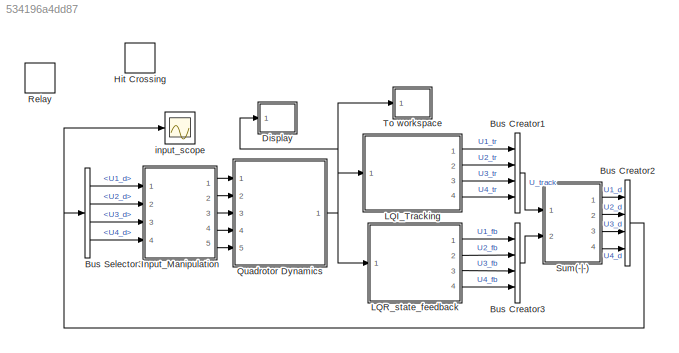
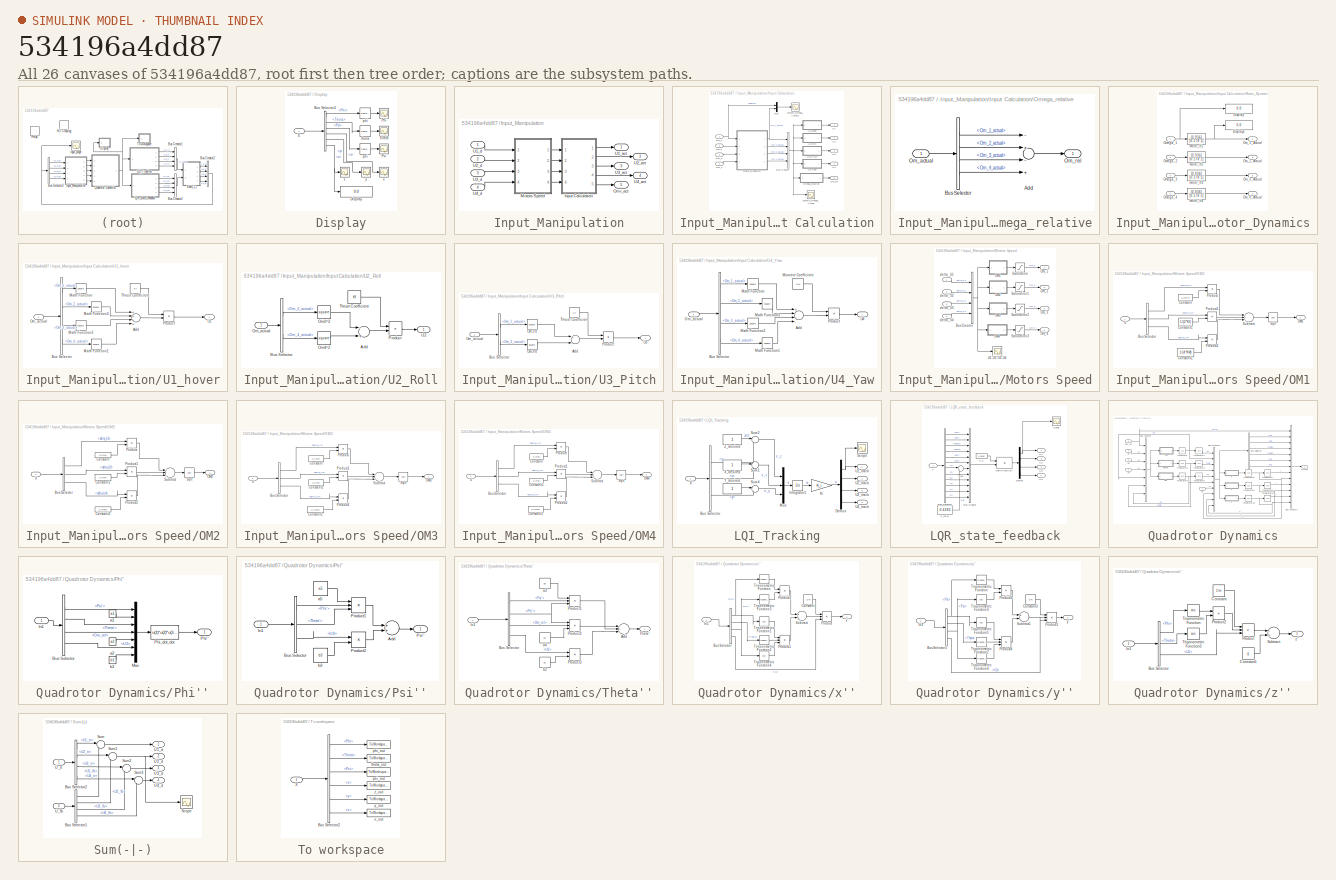
[diagram: thumbnail index - all 26 canvases of the model, root first then tree order]
MODEL slx_534196a4dd87
KIND model
CONFIG AbsTol = auto
CONFIG EnableMultiTasking = on
CONFIG FixedStep = auto
CONFIG MaxStep = auto
CONFIG MinStep = auto
CONFIG PreLoadFcn = Imported_Data_old
CONFIG RelTol = 1e-3
CONFIG SampleTimeConstraint = Unconstrained
CONFIG Solver = ode45
CONFIG SolverName = ode45
CONFIG StartTime = 0.0
CONFIG StopTime = 10
WORKSPACE source: external: MAT-File  (data not in archive)
BLOCK [BusCreator] Bus Creator1
  DisplayOption = bar
  InheritFromInputs = on
  Inputs = 4
  Ports = [4, 1]
BLOCK [BusCreator] Bus Creator2
  DisplayOption = bar
  InheritFromInputs = on
  Inputs = 4
  Ports = [4, 1]
BLOCK [BusCreator] Bus Creator3
  DisplayOption = bar
  InheritFromInputs = on
  Inputs = 4
  Ports = [4, 1]
BLOCK [BusSelector] Bus Selector3
  OutputAsBus = off
  OutputSignals = U1_d,U2_d,U3_d,U4_d
  Ports = [1, 4]
BLOCK [SubSystem] Display
  Ports = [1]
  RequestExecContextInheritance = off
BLOCK [BusSelector] Display/Bus Selector1
  OutputAsBus = off
  OutputSignals = Phi,Theta,Psi,x,y,z
  Ports = [1, 6]
BLOCK [Display] Display/Display
  Decimation = 1
  Ports = [1]
BLOCK [Scope] Display/Phi
  Floating = off
  NumInputPorts = 1
  Ports = [1]
  ScopeSpecificationString = C++SS(StrPVP('Location','[1, 48, 1601, 859]'),StrPVP('Open','off'),MxPVP('AxesTitles',53,'struct(''axes1'',''%<SignalLabel>'')'),MxPVP('ScopeGraphics',56,'struct(''FigureColor'',''[0.5 0.5 0.5]'',''AxesColor'',''[0 0 0]'',''AxesTickColor'',''[1 1 1]'',''LineColors'',''[1 1 0;1 0 1;0 1 1;1 0 0;0 1 0;0 0 1]'',''LineStyles'',''-|-|-|-|-|-'',''LineWidths'',''[0.5 0.5 0.5 0.5 0.5 0.5]'',''MarkerStyles'...<+222ch>  <repeated x4 — deduplicated; at blocks: Phi, Theta, x, y>
BLOCK [Scope] Display/Psi
  Floating = off
  NumInputPorts = 1
  Ports = [1]
  ScopeSpecificationString = C++SS(StrPVP('Location','[1, 48, 1601, 859]'),StrPVP('Open','off'),MxPVP('AxesTitles',53,'struct(''axes1'',''%<SignalLabel>'')'),MxPVP('ScopeGraphics',56,'struct(''FigureColor'',''[0.5 0.5 0.5]'',''AxesColor'',''[0 0 0]'',''AxesTickColor'',''[1 1 1]'',''LineColors'',''[1 1 0;1 0 1;0 1 1;1 0 0;0 1 0;0 0 1]'',''LineStyles'',''-|-|-|-|-|-'',''LineWidths'',''[0.5 0.5 0.5 0.5 0.5 0.5]'',''MarkerStyles'...<+290ch>
BLOCK [Scope] Display/Theta 
  Floating = off
  NumInputPorts = 1
  Ports = [1]
BLOCK [Inport] Display/X
  IconDisplay = Port number
BLOCK [Reference] Display/phi   REF=simulink_extras/Transformations/Radians
to Degrees
  Ports = [1, 1]
  SourceBlock = simulink_extras/Transformations/Radians\nto Degrees
  SourceProductBaseCode = SL
  SourceProductName = Simulink
  SourceType = RadiansToDegrees
BLOCK [Reference] Display/psi   REF=simulink_extras/Transformations/Radians
to Degrees
  Ports = [1, 1]
  SourceBlock = simulink_extras/Transformations/Radians\nto Degrees
  SourceProductBaseCode = SL
  SourceProductName = Simulink
  SourceType = RadiansToDegrees
BLOCK [Reference] Display/theta   REF=simulink_extras/Transformations/Radians
to Degrees
  Ports = [1, 1]
  SourceBlock = simulink_extras/Transformations/Radians\nto Degrees
  SourceProductBaseCode = SL
  SourceProductName = Simulink
  SourceType = RadiansToDegrees
BLOCK [Scope] Display/x
  Floating = off
  NumInputPorts = 1
  Ports = [1]
BLOCK [Scope] Display/y
  Floating = off
  NumInputPorts = 1
  Ports = [1]
BLOCK [Scope] Display/z
  Floating = off
  NumInputPorts = 1
  Ports = [1]
  ScopeSpecificationString = C++SS(StrPVP('Location','[1, 48, 1601, 859]'),StrPVP('Open','off'),MxPVP('AxesTitles',53,'struct(''axes1'',''%<SignalLabel>'')'),MxPVP('ScopeGraphics',56,'struct(''FigureColor'',''[0.5 0.5 0.5]'',''AxesColor'',''[0 0 0]'',''AxesTickColor'',''[1 1 1]'',''LineColors'',''[1 1 0;1 0 1;0 1 1;1 0 0;0 1 0;0 0 1]'',''LineStyles'',''-|-|-|-|-|-'',''LineWidths'',''[0.5 0.5 0.5 0.5 0.5 0.5]'',''MarkerStyles'...<+287ch>
BLOCK [HitCross] Hit Crossing
  Ports = [1, 1]
BLOCK [SubSystem] Input_Manipulation
  Ports = [4, 5]
  RequestExecContextInheritance = off
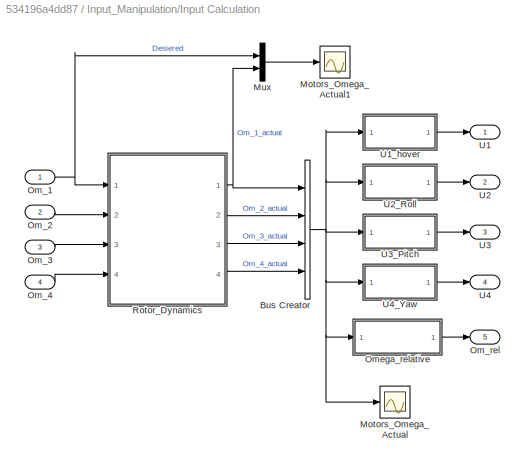
BLOCK [SubSystem] Input_Manipulation/Input Calculation
  Ports = [4, 5]
  RequestExecContextInheritance = off
BLOCK [BusCreator] Input_Manipulation/Input Calculation/Bus Creator
  DisplayOption = bar
  InheritFromInputs = on
  Inputs = 4
  Ports = [4, 1]
BLOCK [Scope] Input_Manipulation/Input Calculation/Motors_Omega_Actual
  Floating = off
  NumInputPorts = 1
  Ports = [1]
  ScopeSpecificationString = C++SS(StrPVP('Location','[188, 390, 512, 629]'),StrPVP('Open','off'),MxPVP('AxesTitles',53,'struct(''axes1'',''%<SignalLabel>'')'),MxPVP('ScopeGraphics',56,'struct(''FigureColor'',''[0.5 0.5 0.5]'',''AxesColor'',''[0 0 0]'',''AxesTickColor'',''[1 1 1]'',''LineColors'',''[1 1 0;1 0 1;0 1 1;1 0 0;0 1 0;0 0 1]'',''LineStyles'',''-|-|-|-|-|-'',''LineWidths'',''[0.5 0.5 0.5 0.5 0.5 0.5]'',''MarkerStyle...<+271ch>
BLOCK [Scope] Input_Manipulation/Input Calculation/Motors_Omega_Actual1
  Floating = off
  NumInputPorts = 1
  Ports = [1]
  ScopeSpecificationString = C++SS(StrPVP('Location','[1, 48, 1601, 859]'),StrPVP('Open','off'),MxPVP('AxesTitles',53,'struct(''axes1'',''%<SignalLabel>'')'),MxPVP('ScopeGraphics',56,'struct(''FigureColor'',''[0.5 0.5 0.5]'',''AxesColor'',''[0 0 0]'',''AxesTickColor'',''[1 1 1]'',''LineColors'',''[1 1 0;1 0 1;0 1 1;1 0 0;0 1 0;0 0 1]'',''LineStyles'',''-|-|-|-|-|-'',''LineWidths'',''[0.5 0.5 0.5 0.5 0.5 0.5]'',''MarkerStyles'...<+270ch>
BLOCK [Mux] Input_Manipulation/Input Calculation/Mux
  DisplayOption = bar
  Inputs = 2
  Ports = [2, 1]
BLOCK [Inport] Input_Manipulation/Input Calculation/Om_1
  IconDisplay = Port number
BLOCK [Inport] Input_Manipulation/Input Calculation/Om_2
  IconDisplay = Port number
  Port = 2
BLOCK [Inport] Input_Manipulation/Input Calculation/Om_3
  IconDisplay = Port number
  Port = 3
BLOCK [Inport] Input_Manipulation/Input Calculation/Om_4
  IconDisplay = Port number
  Port = 4
BLOCK [Outport] Input_Manipulation/Input Calculation/Om_rel
  IconDisplay = Port number
  Port = 5
BLOCK [SubSystem] Input_Manipulation/Input Calculation/Omega_relative
  Ports = [1, 1]
  RequestExecContextInheritance = off
BLOCK [Sum] Input_Manipulation/Input Calculation/Omega_relative/Add
  InputSameDT = off
  Inputs = -+-+
  OutDataTypeStr = Inherit: Inherit via internal rule
  Ports = [4, 1]
  SaturateOnIntegerOverflow = off
BLOCK [BusSelector] Input_Manipulation/Input Calculation/Omega_relative/Bus Selector
  OutputAsBus = off
  OutputSignals = Om_1_actual,Om_2_actual,Om_3_actual,Om_4_actual
  Ports = [1, 4]
BLOCK [Inport] Input_Manipulation/Input Calculation/Omega_relative/Om_actual
  IconDisplay = Port number
BLOCK [Outport] Input_Manipulation/Input Calculation/Omega_relative/Om_rel
  IconDisplay = Port number
BLOCK [SubSystem] Input_Manipulation/Input Calculation/Rotor_Dynamics
  Ports = [4, 4]
  RequestExecContextInheritance = off
BLOCK [Display] Input_Manipulation/Input Calculation/Rotor_Dynamics/Display
  Decimation = 1
  Ports = [1]
BLOCK [Display] Input_Manipulation/Input Calculation/Rotor_Dynamics/Display1
  Decimation = 1
  Ports = [1]
BLOCK [Outport] Input_Manipulation/Input Calculation/Rotor_Dynamics/Om_1_Actual
  IconDisplay = Port number
BLOCK [Outport] Input_Manipulation/Input Calculation/Rotor_Dynamics/Om_2_Actual
  IconDisplay = Port number
  Port = 2
BLOCK [Outport] Input_Manipulation/Input Calculation/Rotor_Dynamics/Om_3_Actual
  IconDisplay = Port number
  Port = 3
BLOCK [Outport] Input_Manipulation/Input Calculation/Rotor_Dynamics/Om_4_Actual
  IconDisplay = Port number
  Port = 4
BLOCK [Inport] Input_Manipulation/Input Calculation/Rotor_Dynamics/Omega_1
  IconDisplay = Port number
BLOCK [Inport] Input_Manipulation/Input Calculation/Rotor_Dynamics/Omega_2
  IconDisplay = Port number
  Port = 2
BLOCK [Inport] Input_Manipulation/Input Calculation/Rotor_Dynamics/Omega_3
  IconDisplay = Port number
  Port = 3
BLOCK [Inport] Input_Manipulation/Input Calculation/Rotor_Dynamics/Omega_4
  IconDisplay = Port number
  Port = 4
BLOCK [TransferFcn] Input_Manipulation/Input Calculation/Rotor_Dynamics/motor_tf1
  Denominator = [0.178 1]
  Numerator = [0.936]
BLOCK [TransferFcn] Input_Manipulation/Input Calculation/Rotor_Dynamics/motor_tf2
  Denominator = [0.178 1]
  Numerator = [0.936]
BLOCK [TransferFcn] Input_Manipulation/Input Calculation/Rotor_Dynamics/motor_tf3
  Denominator = [0.178 1]
  Numerator = [0.936]
BLOCK [TransferFcn] Input_Manipulation/Input Calculation/Rotor_Dynamics/motor_tf4
  Denominator = [0.178 1]
  Numerator = [0.936]
BLOCK [Outport] Input_Manipulation/Input Calculation/U1
  IconDisplay = Port number
BLOCK [SubSystem] Input_Manipulation/Input Calculation/U1_hover
  Ports = [1, 1]
  RequestExecContextInheritance = off
BLOCK [Sum] Input_Manipulation/Input Calculation/U1_hover/Add
  InputSameDT = off
  Inputs = ++++
  OutDataTypeStr = Inherit: Inherit via internal rule
  Ports = [4, 1]
  SaturateOnIntegerOverflow = off
BLOCK [BusSelector] Input_Manipulation/Input Calculation/U1_hover/Bus Selector
  OutputAsBus = off
  OutputSignals = Om_1_actual,Om_2_actual,Om_3_actual,Om_4_actual
  Ports = [1, 4]
BLOCK [Math] Input_Manipulation/Input Calculation/U1_hover/Math Function
  Operator = square
  Ports = [1, 1]
BLOCK [Math] Input_Manipulation/Input Calculation/U1_hover/Math Function1
  Operator = square
  Ports = [1, 1]
BLOCK [Math] Input_Manipulation/Input Calculation/U1_hover/Math Function2
  Operator = square
  Ports = [1, 1]
BLOCK [Math] Input_Manipulation/Input Calculation/U1_hover/Math Function3
  Operator = square
  Ports = [1, 1]
BLOCK [Inport] Input_Manipulation/Input Calculation/U1_hover/Om_actual
  IconDisplay = Port number
BLOCK [Product] Input_Manipulation/Input Calculation/U1_hover/Product
  InputSameDT = off
  OutDataTypeStr = Inherit: Inherit via internal rule
  Ports = [2, 1]
  RndMeth = Floor
  SaturateOnIntegerOverflow = off
BLOCK [Constant] Input_Manipulation/Input Calculation/U1_hover/Thrust Coefficient
  Value = Kf
BLOCK [Outport] Input_Manipulation/Input Calculation/U1_hover/U1
  IconDisplay = Port number
BLOCK [Outport] Input_Manipulation/Input Calculation/U2
  IconDisplay = Port number
  Port = 2
BLOCK [SubSystem] Input_Manipulation/Input Calculation/U2_Roll
  Ports = [1, 1]
  RequestExecContextInheritance = off
BLOCK [Sum] Input_Manipulation/Input Calculation/U2_Roll/Add
  InputSameDT = off
  Inputs = -+
  OutDataTypeStr = Inherit: Inherit via internal rule
  Ports = [2, 1]
  SaturateOnIntegerOverflow = off
BLOCK [BusSelector] Input_Manipulation/Input Calculation/U2_Roll/Bus Selector
  OutputAsBus = off
  OutputSignals = Om_2_actual,Om_4_actual
  Ports = [1, 2]
BLOCK [Math] Input_Manipulation/Input Calculation/U2_Roll/Om2^2
  Operator = square
  Ports = [1, 1]
BLOCK [Math] Input_Manipulation/Input Calculation/U2_Roll/Om4^2
  Operator = square
  Ports = [1, 1]
BLOCK [Inport] Input_Manipulation/Input Calculation/U2_Roll/Om_actual
  IconDisplay = Port number
BLOCK [Product] Input_Manipulation/Input Calculation/U2_Roll/Product
  InputSameDT = off
  OutDataTypeStr = Inherit: Inherit via internal rule
  Ports = [2, 1]
  RndMeth = Floor
  SaturateOnIntegerOverflow = off
BLOCK [Constant] Input_Manipulation/Input Calculation/U2_Roll/Thrust Coefficient
  Value = Kf
BLOCK [Outport] Input_Manipulation/Input Calculation/U2_Roll/U2
  IconDisplay = Port number
BLOCK [Outport] Input_Manipulation/Input Calculation/U3
  IconDisplay = Port number
  Port = 3
BLOCK [SubSystem] Input_Manipulation/Input Calculation/U3_Pitch
  Ports = [1, 1]
  RequestExecContextInheritance = off
BLOCK [Sum] Input_Manipulation/Input Calculation/U3_Pitch/Add
  InputSameDT = off
  Inputs = +-
  OutDataTypeStr = Inherit: Inherit via internal rule
  Ports = [2, 1]
  SaturateOnIntegerOverflow = off
BLOCK [BusSelector] Input_Manipulation/Input Calculation/U3_Pitch/Bus Selector
  OutputAsBus = off
  OutputSignals = Om_1_actual,Om_3_actual
  Ports = [1, 2]
BLOCK [Math] Input_Manipulation/Input Calculation/U3_Pitch/Om1^2
  Operator = square
  Ports = [1, 1]
BLOCK [Math] Input_Manipulation/Input Calculation/U3_Pitch/Om3^2
  Operator = square
  Ports = [1, 1]
BLOCK [Inport] Input_Manipulation/Input Calculation/U3_Pitch/Om_actual
  IconDisplay = Port number
BLOCK [Product] Input_Manipulation/Input Calculation/U3_Pitch/Product
  InputSameDT = off
  OutDataTypeStr = Inherit: Inherit via internal rule
  Ports = [2, 1]
  RndMeth = Floor
  SaturateOnIntegerOverflow = off
BLOCK [Constant] Input_Manipulation/Input Calculation/U3_Pitch/Thrust Coefficient
  Value = Kf
BLOCK [Outport] Input_Manipulation/Input Calculation/U3_Pitch/U3
  IconDisplay = Port number
BLOCK [Outport] Input_Manipulation/Input Calculation/U4
  IconDisplay = Port number
  Port = 4
BLOCK [SubSystem] Input_Manipulation/Input Calculation/U4_Yaw
  Ports = [1, 1]
  RequestExecContextInheritance = off
BLOCK [Sum] Input_Manipulation/Input Calculation/U4_Yaw/Add
  InputSameDT = off
  Inputs = +-+-
  OutDataTypeStr = Inherit: Inherit via internal rule
  Ports = [4, 1]
  SaturateOnIntegerOverflow = off
BLOCK [BusSelector] Input_Manipulation/Input Calculation/U4_Yaw/Bus Selector
  OutputAsBus = off
  OutputSignals = Om_1_actual,Om_2_actual,Om_3_actual,Om_4_actual
  Ports = [1, 4]
BLOCK [Math] Input_Manipulation/Input Calculation/U4_Yaw/Math Function
  Operator = square
  Ports = [1, 1]
BLOCK [Math] Input_Manipulation/Input Calculation/U4_Yaw/Math Function1
  Operator = square
  Ports = [1, 1]
BLOCK [Math] Input_Manipulation/Input Calculation/U4_Yaw/Math Function2
  Operator = square
  Ports = [1, 1]
BLOCK [Math] Input_Manipulation/Input Calculation/U4_Yaw/Math Function3
  Operator = square
  Ports = [1, 1]
BLOCK [Constant] Input_Manipulation/Input Calculation/U4_Yaw/Moment Coefficient
  Value = KM
BLOCK [Inport] Input_Manipulation/Input Calculation/U4_Yaw/Om_actual
  IconDisplay = Port number
BLOCK [Product] Input_Manipulation/Input Calculation/U4_Yaw/Product
  InputSameDT = off
  OutDataTypeStr = Inherit: Inherit via internal rule
  Ports = [2, 1]
  RndMeth = Floor
  SaturateOnIntegerOverflow = off
BLOCK [Outport] Input_Manipulation/Input Calculation/U4_Yaw/U4
  IconDisplay = Port number
BLOCK [SubSystem] Input_Manipulation/Motors Speed
  Ports = [4, 4]
  RequestExecContextInheritance = off
BLOCK [BusCreator] Input_Manipulation/Motors Speed/Bus Creator
  DisplayOption = bar
  InheritFromInputs = on
  Inputs = 4
  Ports = [4, 1]
BLOCK [SubSystem] Input_Manipulation/Motors Speed/OM1
  Ports = [1, 1]
  RequestExecContextInheritance = off
BLOCK [BusSelector] Input_Manipulation/Motors Speed/OM1/Bus Selector
  OutputAsBus = off
  OutputSignals = delta_U1,delta_U3,delta_U4
  Ports = [1, 3]
BLOCK [Constant] Input_Manipulation/Motors Speed/OM1/Constant
  Value = 1/(4*Kf)
BLOCK [Constant] Input_Manipulation/Motors Speed/OM1/Constant1
  Value = 1/(2*Kf)
BLOCK [Constant] Input_Manipulation/Motors Speed/OM1/Constant2
  Value = 1/(4*KM)
BLOCK [Outport] Input_Manipulation/Motors Speed/OM1/OM1
  IconDisplay = Port number
BLOCK [Product] Input_Manipulation/Motors Speed/OM1/Product
  InputSameDT = off
  OutDataTypeStr = Inherit: Inherit via internal rule
  Ports = [2, 1]
  RndMeth = Floor
  SaturateOnIntegerOverflow = off
BLOCK [Product] Input_Manipulation/Motors Speed/OM1/Product1
  InputSameDT = off
  OutDataTypeStr = Inherit: Inherit via internal rule
  Ports = [2, 1]
  RndMeth = Floor
  SaturateOnIntegerOverflow = off
BLOCK [Product] Input_Manipulation/Motors Speed/OM1/Product2
  InputSameDT = off
  OutDataTypeStr = Inherit: Inherit via internal rule
  Ports = [2, 1]
  RndMeth = Floor
  SaturateOnIntegerOverflow = off
BLOCK [Sqrt] Input_Manipulation/Motors Speed/OM1/Sqrt
BLOCK [Sum] Input_Manipulation/Motors Speed/OM1/Subtract
  InputSameDT = off
  Inputs = +++
  OutDataTypeStr = Inherit: Inherit via internal rule
  Ports = [3, 1]
  SaturateOnIntegerOverflow = off
BLOCK [Inport] Input_Manipulation/Motors Speed/OM1/U
  IconDisplay = Port number
BLOCK [SubSystem] Input_Manipulation/Motors Speed/OM2
  Ports = [1, 1]
  RequestExecContextInheritance = off
BLOCK [BusSelector] Input_Manipulation/Motors Speed/OM2/Bus Selector
  OutputAsBus = off
  OutputSignals = delta_U1,delta_U2,delta_U4
  Ports = [1, 3]
BLOCK [Constant] Input_Manipulation/Motors Speed/OM2/Constant
  Value = 1/(4*Kf)
BLOCK [Constant] Input_Manipulation/Motors Speed/OM2/Constant1
  Value = 1/(2*Kf)
BLOCK [Constant] Input_Manipulation/Motors Speed/OM2/Constant2
  Value = 1/(4*KM)
BLOCK [Outport] Input_Manipulation/Motors Speed/OM2/OM2
  IconDisplay = Port number
BLOCK [Product] Input_Manipulation/Motors Speed/OM2/Product
  InputSameDT = off
  OutDataTypeStr = Inherit: Inherit via internal rule
  Ports = [2, 1]
  RndMeth = Floor
  SaturateOnIntegerOverflow = off
BLOCK [Product] Input_Manipulation/Motors Speed/OM2/Product1
  InputSameDT = off
  OutDataTypeStr = Inherit: Inherit via internal rule
  Ports = [2, 1]
  RndMeth = Floor
  SaturateOnIntegerOverflow = off
BLOCK [Product] Input_Manipulation/Motors Speed/OM2/Product2
  InputSameDT = off
  OutDataTypeStr = Inherit: Inherit via internal rule
  Ports = [2, 1]
  RndMeth = Floor
  SaturateOnIntegerOverflow = off
BLOCK [Sqrt] Input_Manipulation/Motors Speed/OM2/Sqrt
BLOCK [Sum] Input_Manipulation/Motors Speed/OM2/Subtract
  InputSameDT = off
  Inputs = +--
  OutDataTypeStr = Inherit: Inherit via internal rule
  Ports = [3, 1]
  SaturateOnIntegerOverflow = off
BLOCK [Inport] Input_Manipulation/Motors Speed/OM2/U
  IconDisplay = Port number
BLOCK [SubSystem] Input_Manipulation/Motors Speed/OM3
  Ports = [1, 1]
  RequestExecContextInheritance = off
BLOCK [BusSelector] Input_Manipulation/Motors Speed/OM3/Bus Selector
  OutputAsBus = off
  OutputSignals = delta_U1,delta_U3,delta_U4
  Ports = [1, 3]
BLOCK [Constant] Input_Manipulation/Motors Speed/OM3/Constant
  Value = 1/(4*Kf)
BLOCK [Constant] Input_Manipulation/Motors Speed/OM3/Constant1
  Value = 1/(2*Kf)
BLOCK [Constant] Input_Manipulation/Motors Speed/OM3/Constant2
  Value = 1/(4*KM)
BLOCK [Outport] Input_Manipulation/Motors Speed/OM3/OM3
  IconDisplay = Port number
BLOCK [Product] Input_Manipulation/Motors Speed/OM3/Product
  InputSameDT = off
  OutDataTypeStr = Inherit: Inherit via internal rule
  Ports = [2, 1]
  RndMeth = Floor
  SaturateOnIntegerOverflow = off
BLOCK [Product] Input_Manipulation/Motors Speed/OM3/Product1
  InputSameDT = off
  OutDataTypeStr = Inherit: Inherit via internal rule
  Ports = [2, 1]
  RndMeth = Floor
  SaturateOnIntegerOverflow = off
BLOCK [Product] Input_Manipulation/Motors Speed/OM3/Product2
  InputSameDT = off
  OutDataTypeStr = Inherit: Inherit via internal rule
  Ports = [2, 1]
  RndMeth = Floor
  SaturateOnIntegerOverflow = off
BLOCK [Sqrt] Input_Manipulation/Motors Speed/OM3/Sqrt
BLOCK [Sum] Input_Manipulation/Motors Speed/OM3/Subtract
  InputSameDT = off
  Inputs = +-+
  OutDataTypeStr = Inherit: Inherit via internal rule
  Ports = [3, 1]
  SaturateOnIntegerOverflow = off
BLOCK [Inport] Input_Manipulation/Motors Speed/OM3/U
  IconDisplay = Port number
BLOCK [SubSystem] Input_Manipulation/Motors Speed/OM4
  Ports = [1, 1]
  RequestExecContextInheritance = off
BLOCK [BusSelector] Input_Manipulation/Motors Speed/OM4/Bus Selector
  OutputAsBus = off
  OutputSignals = delta_U1,delta_U2,delta_U4
  Ports = [1, 3]
BLOCK [Constant] Input_Manipulation/Motors Speed/OM4/Constant
  Value = 1/(4*Kf)
BLOCK [Constant] Input_Manipulation/Motors Speed/OM4/Constant1
  Value = 1/(2*Kf)
BLOCK [Constant] Input_Manipulation/Motors Speed/OM4/Constant2
  Value = 1/(4*KM)
BLOCK [Outport] Input_Manipulation/Motors Speed/OM4/OM4
  IconDisplay = Port number
BLOCK [Product] Input_Manipulation/Motors Speed/OM4/Product
  InputSameDT = off
  OutDataTypeStr = Inherit: Inherit via internal rule
  Ports = [2, 1]
  RndMeth = Floor
  SaturateOnIntegerOverflow = off
BLOCK [Product] Input_Manipulation/Motors Speed/OM4/Product1
  InputSameDT = off
  OutDataTypeStr = Inherit: Inherit via internal rule
  Ports = [2, 1]
  RndMeth = Floor
  SaturateOnIntegerOverflow = off
BLOCK [Product] Input_Manipulation/Motors Speed/OM4/Product2
  InputSameDT = off
  OutDataTypeStr = Inherit: Inherit via internal rule
  Ports = [2, 1]
  RndMeth = Floor
  SaturateOnIntegerOverflow = off
BLOCK [Sqrt] Input_Manipulation/Motors Speed/OM4/Sqrt
BLOCK [Sum] Input_Manipulation/Motors Speed/OM4/Subtract
  InputSameDT = off
  Inputs = ++-
  OutDataTypeStr = Inherit: Inherit via internal rule
  Ports = [3, 1]
  SaturateOnIntegerOverflow = off
BLOCK [Inport] Input_Manipulation/Motors Speed/OM4/U
  IconDisplay = Port number
BLOCK [Outport] Input_Manipulation/Motors Speed/Om_1
  IconDisplay = Port number
BLOCK [Outport] Input_Manipulation/Motors Speed/Om_2
  IconDisplay = Port number
  Port = 2
BLOCK [Outport] Input_Manipulation/Motors Speed/Om_3
  IconDisplay = Port number
  Port = 3
BLOCK [Outport] Input_Manipulation/Motors Speed/Om_4
  IconDisplay = Port number
  Port = 4
BLOCK [Saturate] Input_Manipulation/Motors Speed/Saturation
  InputPortMap = u0
  LowerLimit = 0
  Ports = [1, 1]
  UpperLimit = omega_max
BLOCK [Saturate] Input_Manipulation/Motors Speed/Saturation1
  InputPortMap = u0
  LowerLimit = 0
  Ports = [1, 1]
  UpperLimit = omega_max
BLOCK [Saturate] Input_Manipulation/Motors Speed/Saturation2
  InputPortMap = u0
  LowerLimit = 0
  Ports = [1, 1]
  UpperLimit = omega_max
BLOCK [Saturate] Input_Manipulation/Motors Speed/Saturation3
  InputPortMap = u0
  LowerLimit = 0
  Ports = [1, 1]
  UpperLimit = omega_max
BLOCK [Scope] Input_Manipulation/Motors Speed/U1,U2,U3,U4
  Floating = off
  NumInputPorts = 1
  Ports = [1]
  ScopeSpecificationString = C++SS(StrPVP('Location','[188, 390, 512, 629]'),StrPVP('Open','off'),MxPVP('AxesTitles',53,'struct(''axes1'',''%<SignalLabel>'')'),MxPVP('ScopeGraphics',56,'struct(''FigureColor'',''[0.5 0.5 0.5]'',''AxesColor'',''[0 0 0]'',''AxesTickColor'',''[1 1 1]'',''LineColors'',''[1 1 0;1 0 1;0 1 1;1 0 0;0 1 0;0 0 1]'',''LineStyles'',''-|-|-|-|-|-'',''LineWidths'',''[0.5 0.5 0.5 0.5 0.5 0.5]'',''MarkerStyle...<+239ch>
BLOCK [Inport] Input_Manipulation/Motors Speed/delta_U1
  IconDisplay = Port number
BLOCK [Inport] Input_Manipulation/Motors Speed/delta_U2
  IconDisplay = Port number
  Port = 2
BLOCK [Inport] Input_Manipulation/Motors Speed/delta_U3
  IconDisplay = Port number
  Port = 3
BLOCK [Inport] Input_Manipulation/Motors Speed/delta_U4
  IconDisplay = Port number
  Port = 4
BLOCK [Outport] Input_Manipulation/Omr_act
  IconDisplay = Port number
  Port = 5
BLOCK [Outport] Input_Manipulation/U1_act
  IconDisplay = Port number
BLOCK [Inport] Input_Manipulation/U1_d
  IconDisplay = Port number
BLOCK [Outport] Input_Manipulation/U2_act
  IconDisplay = Port number
  Port = 2
BLOCK [Inport] Input_Manipulation/U2_d
  IconDisplay = Port number
  Port = 2
BLOCK [Outport] Input_Manipulation/U3_act
  IconDisplay = Port number
  Port = 3
BLOCK [Inport] Input_Manipulation/U3_d
  IconDisplay = Port number
  Port = 3
BLOCK [Outport] Input_Manipulation/U4_act
  IconDisplay = Port number
  Port = 4
BLOCK [Inport] Input_Manipulation/U4_d
  IconDisplay = Port number
  Port = 4
BLOCK [SubSystem] LQI_Tracking
  Ports = [1, 4]
  RequestExecContextInheritance = off
BLOCK [BusSelector] LQI_Tracking/Bus Selector
  OutputAsBus = off
  OutputSignals = z,x,y
  Ports = [1, 3]
BLOCK [Demux] LQI_Tracking/Demux
  DisplayOption = bar
  Ports = [1, 4]
BLOCK [Integrator] LQI_Tracking/Integrator1
  Ports = [1, 1]
BLOCK [Gain] LQI_Tracking/Ki
  Gain = K_i
  Multiplication = Matrix(K*u)
  OutDataTypeStr = Inherit: Inherit via internal rule
  ParamDataTypeStr = Inherit: Inherit via internal rule
  SaturateOnIntegerOverflow = off
BLOCK [Mux] LQI_Tracking/Mux
  DisplayOption = bar
  Inputs = 3
  Ports = [3, 1]
BLOCK [Scope] LQI_Tracking/Scope
  Floating = off
  NumInputPorts = 1
  Ports = [1]
  ScopeSpecificationString = C++SS(StrPVP('Location','[99, 525, 423, 764]'),StrPVP('Open','off'),MxPVP('AxesTitles',53,'struct(''axes1'',''%<SignalLabel>'')'),MxPVP('ScopeGraphics',56,'struct(''FigureColor'',''[0.5 0.5 0.5]'',''AxesColor'',''[0 0 0]'',''AxesTickColor'',''[1 1 1]'',''LineColors'',''[1 1 0;1 0 1;0 1 1;1 0 0;0 1 0;0 0 1]'',''LineStyles'',''-|-|-|-|-|-'',''LineWidths'',''[0.5 0.5 0.5 0.5 0.5 0.5]'',''MarkerStyles...<+270ch>
BLOCK [Sum] LQI_Tracking/Sum1
  IconShape = round
  InputSameDT = off
  Inputs = |-+
  OutDataTypeStr = Inherit: Inherit via internal rule
  Ports = [2, 1]
  SaturateOnIntegerOverflow = off
BLOCK [Sum] LQI_Tracking/Sum2
  IconShape = round
  InputSameDT = off
  Inputs = |-+
  OutDataTypeStr = Inherit: Inherit via internal rule
  Ports = [2, 1]
  SaturateOnIntegerOverflow = off
BLOCK [Sum] LQI_Tracking/Sum4
  IconShape = round
  InputSameDT = off
  Inputs = |-+
  OutDataTypeStr = Inherit: Inherit via internal rule
  Ports = [2, 1]
  SaturateOnIntegerOverflow = off
BLOCK [Outport] LQI_Tracking/U1_track
  IconDisplay = Port number
BLOCK [Outport] LQI_Tracking/U2_track
  IconDisplay = Port number
  Port = 2
BLOCK [Outport] LQI_Tracking/U3_track
  IconDisplay = Port number
  Port = 3
BLOCK [Outport] LQI_Tracking/U4_track
  IconDisplay = Port number
  Port = 4
BLOCK [Inport] LQI_Tracking/X
  IconDisplay = Port number
BLOCK [Constant] LQI_Tracking/X_desired
BLOCK [Constant] LQI_Tracking/Y_desired
BLOCK [Constant] LQI_Tracking/Z_desired
BLOCK [SubSystem] LQR_state_feedback
  Ports = [1, 4]
  RequestExecContextInheritance = off
BLOCK [BusCreator] LQR_state_feedback/Bus Creator
  DisplayOption = bar
  InheritFromInputs = on
  Inputs = 12
  Ports = [12, 1]
BLOCK [BusSelector] LQR_state_feedback/Bus Selector
  OutputAsBus = off
  OutputSignals = Phi,Phi',Theta,Theta',Psi,Psi',z,z',x,x',y,y'
  Ports = [1, 12]
BLOCK [Demux] LQR_state_feedback/Demux
  DisplayOption = bar
  Ports = [1, 4]
BLOCK [Constant] LQR_state_feedback/K_c
  Value = K_hover
BLOCK [Product] LQR_state_feedback/Matrix Multiply
  InputSameDT = off
  Multiplication = Matrix(*)
  OutDataTypeStr = Inherit: Inherit via internal rule
  Ports = [2, 1]
  RndMeth = Floor
  SaturateOnIntegerOverflow = off
BLOCK [Scope] LQR_state_feedback/Scope
  Floating = off
  NumInputPorts = 1
  Ports = [1]
  ScopeSpecificationString = C++SS(StrPVP('Location','[99, 525, 423, 764]'),StrPVP('Open','off'),MxPVP('AxesTitles',53,'struct(''axes1'',''%<SignalLabel>'')'),MxPVP('ScopeGraphics',56,'struct(''FigureColor'',''[0.5 0.5 0.5]'',''AxesColor'',''[0 0 0]'',''AxesTickColor'',''[1 1 1]'',''LineColors'',''[1 1 0;1 0 1;0 1 1;1 0 0;0 1 0;0 0 1]'',''LineStyles'',''-|-|-|-|-|-'',''LineWidths'',''[0.5 0.5 0.5 0.5 0.5 0.5]'',''MarkerStyles...<+271ch>
BLOCK [Sum] LQR_state_feedback/Sum
  IconShape = round
  InputSameDT = off
  Inputs = |+-
  OutDataTypeStr = Inherit: Inherit via internal rule
  Ports = [2, 1]
  SaturateOnIntegerOverflow = off
BLOCK [Outport] LQR_state_feedback/U1
  IconDisplay = Port number
BLOCK [Outport] LQR_state_feedback/U2
  IconDisplay = Port number
  Port = 2
BLOCK [Outport] LQR_state_feedback/U3
  IconDisplay = Port number
  Port = 3
BLOCK [Outport] LQR_state_feedback/U4
  IconDisplay = Port number
  Port = 4
BLOCK [Inport] LQR_state_feedback/X
  IconDisplay = Port number
BLOCK [Constant] LQR_state_feedback/Z_ref=0
  Value = -0.4282
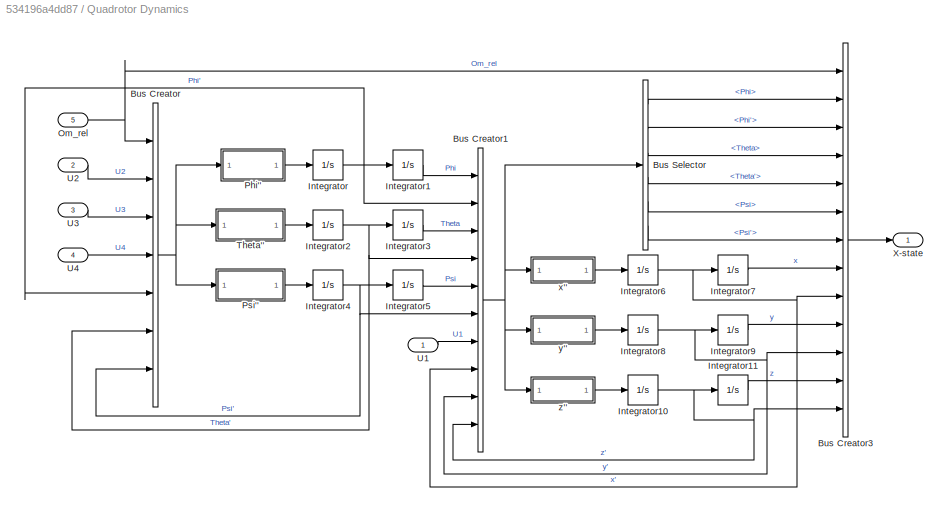
BLOCK [SubSystem] Quadrotor Dynamics
  Ports = [5, 1]
  RequestExecContextInheritance = off
BLOCK [BusCreator] Quadrotor Dynamics/Bus Creator
  DisplayOption = bar
  InheritFromInputs = on
  Inputs = 7
  Ports = [7, 1]
BLOCK [BusCreator] Quadrotor Dynamics/Bus Creator1
  DisplayOption = bar
  InheritFromInputs = on
  Inputs = 10
  Ports = [10, 1]
BLOCK [BusCreator] Quadrotor Dynamics/Bus Creator3
  DisplayOption = bar
  InheritFromInputs = on
  Inputs = 13
  Ports = [13, 1]
BLOCK [BusSelector] Quadrotor Dynamics/Bus Selector
  OutputAsBus = off
  OutputSignals = Phi,Phi',Theta,Theta',Psi,Psi'
  Ports = [1, 6]
BLOCK [Integrator] Quadrotor Dynamics/Integrator
  Ports = [1, 1]
BLOCK [Integrator] Quadrotor Dynamics/Integrator1
  Ports = [1, 1]
BLOCK [Integrator] Quadrotor Dynamics/Integrator10
  Ports = [1, 1]
BLOCK [Integrator] Quadrotor Dynamics/Integrator11
  Ports = [1, 1]
BLOCK [Integrator] Quadrotor Dynamics/Integrator2
  Ports = [1, 1]
BLOCK [Integrator] Quadrotor Dynamics/Integrator3
  Ports = [1, 1]
BLOCK [Integrator] Quadrotor Dynamics/Integrator4
  Ports = [1, 1]
BLOCK [Integrator] Quadrotor Dynamics/Integrator5
  Ports = [1, 1]
BLOCK [Integrator] Quadrotor Dynamics/Integrator6
  Ports = [1, 1]
BLOCK [Integrator] Quadrotor Dynamics/Integrator7
  Ports = [1, 1]
BLOCK [Integrator] Quadrotor Dynamics/Integrator8
  Ports = [1, 1]
BLOCK [Integrator] Quadrotor Dynamics/Integrator9
  Ports = [1, 1]
BLOCK [Inport] Quadrotor Dynamics/Om_rel
  IconDisplay = Port number
  Port = 5
BLOCK [SubSystem] Quadrotor Dynamics/Phi''
  Ports = [1, 1]
  RequestExecContextInheritance = off
BLOCK [BusSelector] Quadrotor Dynamics/Phi''/Bus Selector
  OutputAsBus = off
  OutputSignals = Psi',Theta',Om_rel,U2
  Ports = [1, 4]
BLOCK [Inport] Quadrotor Dynamics/Phi''/In1
  IconDisplay = Port number
BLOCK [Mux] Quadrotor Dynamics/Phi''/Mux
  DisplayOption = bar
  Inputs = 7
  Ports = [7, 1]
BLOCK [Outport] Quadrotor Dynamics/Phi''/Phi''
  IconDisplay = Port number
BLOCK [Fcn] Quadrotor Dynamics/Phi''/Phi_dot_dot
  Expr = u(1)*u(2)*u(3)-u(3)*u(4)*u(5)+u(6)*u(7)
BLOCK [Constant] Quadrotor Dynamics/Phi''/a1
  Value = a1
BLOCK [Constant] Quadrotor Dynamics/Phi''/a2
  Value = a2
BLOCK [Constant] Quadrotor Dynamics/Phi''/b1
  Value = b1
BLOCK [SubSystem] Quadrotor Dynamics/Psi''
  Ports = [1, 1]
  RequestExecContextInheritance = off
BLOCK [Sum] Quadrotor Dynamics/Psi''/Add
  InputSameDT = off
  OutDataTypeStr = Inherit: Inherit via internal rule
  Ports = [2, 1]
  SaturateOnIntegerOverflow = off
BLOCK [BusSelector] Quadrotor Dynamics/Psi''/Bus Selector
  OutputAsBus = off
  OutputSignals = Phi',Theta',U4
  Ports = [1, 3]
BLOCK [Inport] Quadrotor Dynamics/Psi''/In1
  IconDisplay = Port number
BLOCK [Product] Quadrotor Dynamics/Psi''/Product1
  InputSameDT = off
  Inputs = 3
  OutDataTypeStr = Inherit: Inherit via internal rule
  Ports = [3, 1]
  RndMeth = Floor
  SaturateOnIntegerOverflow = off
BLOCK [Product] Quadrotor Dynamics/Psi''/Product2
  InputSameDT = off
  OutDataTypeStr = Inherit: Inherit via internal rule
  Ports = [2, 1]
  RndMeth = Floor
  SaturateOnIntegerOverflow = off
BLOCK [Outport] Quadrotor Dynamics/Psi''/Psi''
  IconDisplay = Port number
BLOCK [Constant] Quadrotor Dynamics/Psi''/a5
  Value = a5
BLOCK [Constant] Quadrotor Dynamics/Psi''/b3
  Value = b3
BLOCK [SubSystem] Quadrotor Dynamics/Theta''
  Ports = [1, 1]
  RequestExecContextInheritance = off
BLOCK [Sum] Quadrotor Dynamics/Theta''/Add
  InputSameDT = off
  Inputs = +++
  OutDataTypeStr = Inherit: Inherit via internal rule
  Ports = [3, 1]
  SaturateOnIntegerOverflow = off
BLOCK [BusSelector] Quadrotor Dynamics/Theta''/Bus Selector
  OutputAsBus = off
  OutputSignals = Psi',Phi',Om_rel,U3
  Ports = [1, 4]
BLOCK [Inport] Quadrotor Dynamics/Theta''/In1
  IconDisplay = Port number
BLOCK [Product] Quadrotor Dynamics/Theta''/Product1
  InputSameDT = off
  Inputs = 3
  OutDataTypeStr = Inherit: Inherit via internal rule
  Ports = [3, 1]
  RndMeth = Floor
  SaturateOnIntegerOverflow = off
BLOCK [Product] Quadrotor Dynamics/Theta''/Product2
  InputSameDT = off
  Inputs = 3
  OutDataTypeStr = Inherit: Inherit via internal rule
  Ports = [3, 1]
  RndMeth = Floor
  SaturateOnIntegerOverflow = off
BLOCK [Product] Quadrotor Dynamics/Theta''/Product3
  InputSameDT = off
  OutDataTypeStr = Inherit: Inherit via internal rule
  Ports = [2, 1]
  RndMeth = Floor
  SaturateOnIntegerOverflow = off
BLOCK [Outport] Quadrotor Dynamics/Theta''/Theta''
  IconDisplay = Port number
BLOCK [Constant] Quadrotor Dynamics/Theta''/a3
  Value = a3
BLOCK [Constant] Quadrotor Dynamics/Theta''/a4
  Value = a4
BLOCK [Constant] Quadrotor Dynamics/Theta''/b2
  Value = b2
BLOCK [Inport] Quadrotor Dynamics/U1
  IconDisplay = Port number
BLOCK [Inport] Quadrotor Dynamics/U2
  IconDisplay = Port number
  Port = 2
BLOCK [Inport] Quadrotor Dynamics/U3
  IconDisplay = Port number
  Port = 3
BLOCK [Inport] Quadrotor Dynamics/U4
  IconDisplay = Port number
  Port = 4
BLOCK [Outport] Quadrotor Dynamics/X-state
  IconDisplay = Port number
BLOCK [SubSystem] Quadrotor Dynamics/x''
  Ports = [1, 1]
  RequestExecContextInheritance = off
BLOCK [BusSelector] Quadrotor Dynamics/x''/Bus Selector
  OutputAsBus = off
  OutputSignals = Phi,Theta,Psi,U1
  Ports = [1, 4]
BLOCK [Constant] Quadrotor Dynamics/x''/Constant
  Value = -1/m
BLOCK [Inport] Quadrotor Dynamics/x''/In1
  IconDisplay = Port number
BLOCK [Product] Quadrotor Dynamics/x''/Product
  InputSameDT = off
  Inputs = 3
  OutDataTypeStr = Inherit: Inherit via internal rule
  Ports = [3, 1]
  RndMeth = Floor
  SaturateOnIntegerOverflow = off
BLOCK [Product] Quadrotor Dynamics/x''/Product1
  InputSameDT = off
  Inputs = 3
  OutDataTypeStr = Inherit: Inherit via internal rule
  Ports = [3, 1]
  RndMeth = Floor
  SaturateOnIntegerOverflow = off
BLOCK [Product] Quadrotor Dynamics/x''/Product2
  InputSameDT = off
  OutDataTypeStr = Inherit: Inherit via internal rule
  Ports = [2, 1]
  RndMeth = Floor
  SaturateOnIntegerOverflow = off
BLOCK [Sum] Quadrotor Dynamics/x''/Subtract
  InputSameDT = off
  OutDataTypeStr = Inherit: Inherit via internal rule
  Ports = [2, 1]
  SaturateOnIntegerOverflow = off
BLOCK [Trigonometry] Quadrotor Dynamics/x''/Trigonometric Function
  Ports = [1, 1]
BLOCK [Trigonometry] Quadrotor Dynamics/x''/Trigonometric Function1
  Operator = cos
  Ports = [1, 1]
BLOCK [Trigonometry] Quadrotor Dynamics/x''/Trigonometric Function2
  Ports = [1, 1]
BLOCK [Trigonometry] Quadrotor Dynamics/x''/Trigonometric Function3
  Ports = [1, 1]
BLOCK [Trigonometry] Quadrotor Dynamics/x''/Trigonometric Function4
  Operator = cos
  Ports = [1, 1]
BLOCK [Outport] Quadrotor Dynamics/x''/x''
  IconDisplay = Port number
BLOCK [SubSystem] Quadrotor Dynamics/y''
  Ports = [1, 1]
  RequestExecContextInheritance = off
BLOCK [BusSelector] Quadrotor Dynamics/y''/Bus Selector1
  OutputAsBus = off
  OutputSignals = Phi,Theta,Psi,U1
  Ports = [1, 4]
BLOCK [Constant] Quadrotor Dynamics/y''/Constant3
  Value = 1/m
BLOCK [Inport] Quadrotor Dynamics/y''/In2
  IconDisplay = Port number
BLOCK [Product] Quadrotor Dynamics/y''/Product3
  InputSameDT = off
  Inputs = 3
  OutDataTypeStr = Inherit: Inherit via internal rule
  Ports = [3, 1]
  RndMeth = Floor
  SaturateOnIntegerOverflow = off
BLOCK [Product] Quadrotor Dynamics/y''/Product4
  InputSameDT = off
  Inputs = 3
  OutDataTypeStr = Inherit: Inherit via internal rule
  Ports = [3, 1]
  RndMeth = Floor
  SaturateOnIntegerOverflow = off
BLOCK [Product] Quadrotor Dynamics/y''/Product5
  InputSameDT = off
  OutDataTypeStr = Inherit: Inherit via internal rule
  Ports = [2, 1]
  RndMeth = Floor
  SaturateOnIntegerOverflow = off
BLOCK [Sum] Quadrotor Dynamics/y''/Subtract1
  InputSameDT = off
  Inputs = +-
  OutDataTypeStr = Inherit: Inherit via internal rule
  Ports = [2, 1]
  SaturateOnIntegerOverflow = off
BLOCK [Trigonometry] Quadrotor Dynamics/y''/Trigonometric Function
  Ports = [1, 1]
BLOCK [Trigonometry] Quadrotor Dynamics/y''/Trigonometric Function1
  Operator = cos
  Ports = [1, 1]
BLOCK [Trigonometry] Quadrotor Dynamics/y''/Trigonometric Function2
  Ports = [1, 1]
BLOCK [Trigonometry] Quadrotor Dynamics/y''/Trigonometric Function3
  Operator = cos
  Ports = [1, 1]
BLOCK [Trigonometry] Quadrotor Dynamics/y''/Trigonometric Function4
  Ports = [1, 1]
BLOCK [Outport] Quadrotor Dynamics/y''/y''
  IconDisplay = Port number
BLOCK [SubSystem] Quadrotor Dynamics/z''
  Ports = [1, 1]
  RequestExecContextInheritance = off
BLOCK [BusSelector] Quadrotor Dynamics/z''/Bus Selector
  OutputAsBus = off
  OutputSignals = Phi,Theta,U1
  Ports = [1, 3]
BLOCK [Constant] Quadrotor Dynamics/z''/Constant
  Value = 1/m
BLOCK [Constant] Quadrotor Dynamics/z''/Constant1
  Value = g
BLOCK [Inport] Quadrotor Dynamics/z''/In1
  IconDisplay = Port number
BLOCK [Product] Quadrotor Dynamics/z''/Product
  InputSameDT = off
  Inputs = 3
  OutDataTypeStr = Inherit: Inherit via internal rule
  Ports = [3, 1]
  RndMeth = Floor
  SaturateOnIntegerOverflow = off
BLOCK [Product] Quadrotor Dynamics/z''/Product2
  InputSameDT = off
  OutDataTypeStr = Inherit: Inherit via internal rule
  Ports = [2, 1]
  RndMeth = Floor
  SaturateOnIntegerOverflow = off
BLOCK [Sum] Quadrotor Dynamics/z''/Subtract
  InputSameDT = off
  Inputs = -+
  OutDataTypeStr = Inherit: Inherit via internal rule
  Ports = [2, 1]
  SaturateOnIntegerOverflow = off
BLOCK [Trigonometry] Quadrotor Dynamics/z''/Trigonometric Function
  Operator = cos
  Ports = [1, 1]
BLOCK [Trigonometry] Quadrotor Dynamics/z''/Trigonometric Function3
  Operator = cos
  Ports = [1, 1]
BLOCK [Outport] Quadrotor Dynamics/z''/z''
  IconDisplay = Port number
BLOCK [Relay] Relay
BLOCK [SubSystem] Sum(-|-)
  Ports = [2, 4]
  RequestExecContextInheritance = off
BLOCK [BusSelector] Sum(-|-)/Bus Selector1
  OutputAsBus = off
  OutputSignals = U1_fb,U2_fb,U3_fb,U4_fb
  Ports = [1, 4]
BLOCK [BusSelector] Sum(-|-)/Bus Selector2
  OutputAsBus = off
  OutputSignals = U1_tr,U2_tr,U3_tr,U4_tr
  Ports = [1, 4]
BLOCK [Scope] Sum(-|-)/Scope
  Floating = off
  NumInputPorts = 1
  Ports = [1]
  ScopeSpecificationString = C++SS(StrPVP('Location','[1, 48, 1601, 859]'),StrPVP('Open','off'),StrPVP('ZoomMode','xonly'),MxPVP('AxesTitles',53,'struct(''axes1'',''%<SignalLabel>'')'),MxPVP('ScopeGraphics',56,'struct(''FigureColor'',''[0.5 0.5 0.5]'',''AxesColor'',''[0 0 0]'',''AxesTickColor'',''[1 1 1]'',''LineColors'',''[1 1 0;1 0 1;0 1 1;1 0 0;0 1 0;0 0 1]'',''LineStyles'',''-|-|-|-|-|-'',''LineWidths'',''[0.5 0.5 0.5 0.5...<+409ch>
BLOCK [Sum] Sum(-|-)/Sum
  IconShape = round
  InputSameDT = off
  Inputs = |--
  OutDataTypeStr = Inherit: Inherit via internal rule
  Ports = [2, 1]
  SaturateOnIntegerOverflow = off
BLOCK [Sum] Sum(-|-)/Sum1
  IconShape = round
  InputSameDT = off
  Inputs = |--
  OutDataTypeStr = Inherit: Inherit via internal rule
  Ports = [2, 1]
  SaturateOnIntegerOverflow = off
BLOCK [Sum] Sum(-|-)/Sum2
  IconShape = round
  InputSameDT = off
  Inputs = |--
  OutDataTypeStr = Inherit: Inherit via internal rule
  Ports = [2, 1]
  SaturateOnIntegerOverflow = off
BLOCK [Sum] Sum(-|-)/Sum3
  IconShape = round
  InputSameDT = off
  Inputs = |--
  OutDataTypeStr = Inherit: Inherit via internal rule
  Ports = [2, 1]
  SaturateOnIntegerOverflow = off
BLOCK [Outport] Sum(-|-)/U1_d
  IconDisplay = Port number
BLOCK [Outport] Sum(-|-)/U2_d
  IconDisplay = Port number
  Port = 2
BLOCK [Outport] Sum(-|-)/U3_d
  IconDisplay = Port number
  Port = 3
BLOCK [Outport] Sum(-|-)/U4_d
  IconDisplay = Port number
  Port = 4
BLOCK [Inport] Sum(-|-)/U_fb
  IconDisplay = Port number
  Port = 2
BLOCK [Inport] Sum(-|-)/U_tr
  IconDisplay = Port number
BLOCK [SubSystem] To workspace
  Ports = [1]
  RequestExecContextInheritance = off
BLOCK [BusSelector] To workspace/Bus Selector2
  OutputAsBus = off
  OutputSignals = Phi,Theta,Psi,z,y,x
  Ports = [1, 6]
BLOCK [Inport] To workspace/X
  IconDisplay = Port number
BLOCK [ToWorkspace] To workspace/phi_out
  MaxDataPoints = inf
  Ports = [1]
  SampleTime = -1
  SaveFormat = Timeseries
  VariableName = Phi_out
BLOCK [ToWorkspace] To workspace/psi_out
  MaxDataPoints = inf
  Ports = [1]
  SampleTime = -1
  SaveFormat = Timeseries
  VariableName = Psi_out
BLOCK [ToWorkspace] To workspace/theta_out
  MaxDataPoints = inf
  Ports = [1]
  SampleTime = -1
  SaveFormat = Timeseries
  VariableName = Theta_out
BLOCK [ToWorkspace] To workspace/x_out
  MaxDataPoints = inf
  Ports = [1]
  SampleTime = -1
  SaveFormat = Timeseries
  VariableName = x_out
BLOCK [ToWorkspace] To workspace/y_out
  MaxDataPoints = inf
  Ports = [1]
  SampleTime = -1
  SaveFormat = Timeseries
  VariableName = y_out
BLOCK [ToWorkspace] To workspace/z_out
  MaxDataPoints = inf
  Ports = [1]
  SampleTime = -1
  SaveFormat = Timeseries
  VariableName = z_out
BLOCK [Scope] input_scope
  Floating = off
  NumInputPorts = 1
  Ports = [1]
  ScopeSpecificationString = C++SS(StrPVP('Location','[1, 58, 1601, 869]'),StrPVP('Open','off'),StrPVP('ZoomMode','xonly'),MxPVP('AxesTitles',53,'struct(''axes1'',''%<SignalLabel>'')'),MxPVP('ScopeGraphics',56,'struct(''FigureColor'',''[0.5 0.5 0.5]'',''AxesColor'',''[0 0 0]'',''AxesTickColor'',''[1 1 1]'',''LineColors'',''[1 1 0;1 0 1;0 1 1;1 0 0;0 1 0;0 0 1]'',''LineStyles'',''-|-|-|-|-|-'',''LineWidths'',''[0.5 0.5 0.5 0.5...<+409ch>
LINE Bus Creator1:1 -> Sum(-|-):1
NET Bus Creator2:1 -> Bus Selector3:1, input_scope:1
LINE Bus Creator3:1 -> Sum(-|-):2
LINE Bus Selector3:1 -> Input_Manipulation:1
LINE Bus Selector3:2 -> Input_Manipulation:2
LINE Bus Selector3:3 -> Input_Manipulation:3
LINE Bus Selector3:4 -> Input_Manipulation:4
LINE Display/Bus Selector1:1 -> Display/phi :1
LINE Display/Bus Selector1:2 -> Display/theta :1
LINE Display/Bus Selector1:3 -> Display/psi :1
LINE Display/Bus Selector1:4 -> Display/x:1
LINE Display/Bus Selector1:5 -> Display/y:1
NET Display/Bus Selector1:6 -> Display/Display:1, Display/z:1
LINE Display/X:1 -> Display/Bus Selector1:1
LINE Display/phi :1 -> Display/Phi:1
LINE Display/psi :1 -> Display/Psi:1
LINE Display/theta :1 -> Display/Theta :1
NET Input_Manipulation/Input Calculation/Bus Creator:1 -> Input_Manipulation/Input Calculation/Motors_Omega_Actual:1, Input_Manipulation/Input Calculation/Omega_relative:1, Input_Manipulation/Input Calculation/U1_hover:1, Input_Manipulation/Input Calculation/U2_Roll:1, Input_Manipulation/Input Calculation/U3_Pitch:1, Input_Manipulation/Input Calculation/U4_Yaw:1
LINE Input_Manipulation/Input Calculation/Mux:1 -> Input_Manipulation/Input Calculation/Motors_Omega_Actual1:1
NET Input_Manipulation/Input Calculation/Om_1:1 -> Input_Manipulation/Input Calculation/Mux:1, Input_Manipulation/Input Calculation/Rotor_Dynamics:1
LINE Input_Manipulation/Input Calculation/Om_2:1 -> Input_Manipulation/Input Calculation/Rotor_Dynamics:2
LINE Input_Manipulation/Input Calculation/Om_3:1 -> Input_Manipulation/Input Calculation/Rotor_Dynamics:3
LINE Input_Manipulation/Input Calculation/Om_4:1 -> Input_Manipulation/Input Calculation/Rotor_Dynamics:4
LINE Input_Manipulation/Input Calculation/Omega_relative/Add:1 -> Input_Manipulation/Input Calculation/Omega_relative/Om_rel:1
LINE Input_Manipulation/Input Calculation/Omega_relative/Bus Selector:1 -> Input_Manipulation/Input Calculation/Omega_relative/Add:1
LINE Input_Manipulation/Input Calculation/Omega_relative/Bus Selector:2 -> Input_Manipulation/Input Calculation/Omega_relative/Add:2
LINE Input_Manipulation/Input Calculation/Omega_relative/Bus Selector:3 -> Input_Manipulation/Input Calculation/Omega_relative/Add:3
LINE Input_Manipulation/Input Calculation/Omega_relative/Bus Selector:4 -> Input_Manipulation/Input Calculation/Omega_relative/Add:4
LINE Input_Manipulation/Input Calculation/Omega_relative/Om_actual:1 -> Input_Manipulation/Input Calculation/Omega_relative/Bus Selector:1
LINE Input_Manipulation/Input Calculation/Omega_relative:1 -> Input_Manipulation/Input Calculation/Om_rel:1
NET Input_Manipulation/Input Calculation/Rotor_Dynamics/Omega_1:1 -> Input_Manipulation/Input Calculation/Rotor_Dynamics/Display:1, Input_Manipulation/Input Calculation/Rotor_Dynamics/motor_tf1:1
LINE Input_Manipulation/Input Calculation/Rotor_Dynamics/Omega_2:1 -> Input_Manipulation/Input Calculation/Rotor_Dynamics/motor_tf2:1
LINE Input_Manipulation/Input Calculation/Rotor_Dynamics/Omega_3:1 -> Input_Manipulation/Input Calculation/Rotor_Dynamics/motor_tf3:1
LINE Input_Manipulation/Input Calculation/Rotor_Dynamics/Omega_4:1 -> Input_Manipulation/Input Calculation/Rotor_Dynamics/motor_tf4:1
NET Input_Manipulation/Input Calculation/Rotor_Dynamics/motor_tf1:1 -> Input_Manipulation/Input Calculation/Rotor_Dynamics/Display1:1, Input_Manipulation/Input Calculation/Rotor_Dynamics/Om_1_Actual:1
LINE Input_Manipulation/Input Calculation/Rotor_Dynamics/motor_tf2:1 -> Input_Manipulation/Input Calculation/Rotor_Dynamics/Om_2_Actual:1
LINE Input_Manipulation/Input Calculation/Rotor_Dynamics/motor_tf3:1 -> Input_Manipulation/Input Calculation/Rotor_Dynamics/Om_3_Actual:1
LINE Input_Manipulation/Input Calculation/Rotor_Dynamics/motor_tf4:1 -> Input_Manipulation/Input Calculation/Rotor_Dynamics/Om_4_Actual:1
NET Input_Manipulation/Input Calculation/Rotor_Dynamics:1 -> Input_Manipulation/Input Calculation/Bus Creator:1, Input_Manipulation/Input Calculation/Mux:2
LINE Input_Manipulation/Input Calculation/Rotor_Dynamics:2 -> Input_Manipulation/Input Calculation/Bus Creator:2
LINE Input_Manipulation/Input Calculation/Rotor_Dynamics:3 -> Input_Manipulation/Input Calculation/Bus Creator:3
LINE Input_Manipulation/Input Calculation/Rotor_Dynamics:4 -> Input_Manipulation/Input Calculation/Bus Creator:4
LINE Input_Manipulation/Input Calculation/U1_hover/Add:1 -> Input_Manipulation/Input Calculation/U1_hover/Product:2
LINE Input_Manipulation/Input Calculation/U1_hover/Bus Selector:1 -> Input_Manipulation/Input Calculation/U1_hover/Math Function:1
LINE Input_Manipulation/Input Calculation/U1_hover/Bus Selector:2 -> Input_Manipulation/Input Calculation/U1_hover/Math Function3:1
LINE Input_Manipulation/Input Calculation/U1_hover/Bus Selector:3 -> Input_Manipulation/Input Calculation/U1_hover/Math Function2:1
LINE Input_Manipulation/Input Calculation/U1_hover/Bus Selector:4 -> Input_Manipulation/Input Calculation/U1_hover/Math Function1:1
LINE Input_Manipulation/Input Calculation/U1_hover/Math Function1:1 -> Input_Manipulation/Input Calculation/U1_hover/Add:4
LINE Input_Manipulation/Input Calculation/U1_hover/Math Function2:1 -> Input_Manipulation/Input Calculation/U1_hover/Add:3
LINE Input_Manipulation/Input Calculation/U1_hover/Math Function3:1 -> Input_Manipulation/Input Calculation/U1_hover/Add:2
LINE Input_Manipulation/Input Calculation/U1_hover/Math Function:1 -> Input_Manipulation/Input Calculation/U1_hover/Add:1
LINE Input_Manipulation/Input Calculation/U1_hover/Om_actual:1 -> Input_Manipulation/Input Calculation/U1_hover/Bus Selector:1
LINE Input_Manipulation/Input Calculation/U1_hover/Product:1 -> Input_Manipulation/Input Calculation/U1_hover/U1:1
LINE Input_Manipulation/Input Calculation/U1_hover/Thrust Coefficient:1 -> Input_Manipulation/Input Calculation/U1_hover/Product:1
LINE Input_Manipulation/Input Calculation/U1_hover:1 -> Input_Manipulation/Input Calculation/U1:1
LINE Input_Manipulation/Input Calculation/U2_Roll/Add:1 -> Input_Manipulation/Input Calculation/U2_Roll/Product:2
LINE Input_Manipulation/Input Calculation/U2_Roll/Bus Selector:1 -> Input_Manipulation/Input Calculation/U2_Roll/Om2^2:1
LINE Input_Manipulation/Input Calculation/U2_Roll/Bus Selector:2 -> Input_Manipulation/Input Calculation/U2_Roll/Om4^2:1
LINE Input_Manipulation/Input Calculation/U2_Roll/Om2^2:1 -> Input_Manipulation/Input Calculation/U2_Roll/Add:1
LINE Input_Manipulation/Input Calculation/U2_Roll/Om4^2:1 -> Input_Manipulation/Input Calculation/U2_Roll/Add:2
LINE Input_Manipulation/Input Calculation/U2_Roll/Om_actual:1 -> Input_Manipulation/Input Calculation/U2_Roll/Bus Selector:1
LINE Input_Manipulation/Input Calculation/U2_Roll/Product:1 -> Input_Manipulation/Input Calculation/U2_Roll/U2:1
LINE Input_Manipulation/Input Calculation/U2_Roll/Thrust Coefficient:1 -> Input_Manipulation/Input Calculation/U2_Roll/Product:1
LINE Input_Manipulation/Input Calculation/U2_Roll:1 -> Input_Manipulation/Input Calculation/U2:1
LINE Input_Manipulation/Input Calculation/U3_Pitch/Add:1 -> Input_Manipulation/Input Calculation/U3_Pitch/Product:2
LINE Input_Manipulation/Input Calculation/U3_Pitch/Bus Selector:1 -> Input_Manipulation/Input Calculation/U3_Pitch/Om1^2:1
LINE Input_Manipulation/Input Calculation/U3_Pitch/Bus Selector:2 -> Input_Manipulation/Input Calculation/U3_Pitch/Om3^2:1
LINE Input_Manipulation/Input Calculation/U3_Pitch/Om1^2:1 -> Input_Manipulation/Input Calculation/U3_Pitch/Add:1
LINE Input_Manipulation/Input Calculation/U3_Pitch/Om3^2:1 -> Input_Manipulation/Input Calculation/U3_Pitch/Add:2
LINE Input_Manipulation/Input Calculation/U3_Pitch/Om_actual:1 -> Input_Manipulation/Input Calculation/U3_Pitch/Bus Selector:1
LINE Input_Manipulation/Input Calculation/U3_Pitch/Product:1 -> Input_Manipulation/Input Calculation/U3_Pitch/U3:1
LINE Input_Manipulation/Input Calculation/U3_Pitch/Thrust Coefficient:1 -> Input_Manipulation/Input Calculation/U3_Pitch/Product:1
LINE Input_Manipulation/Input Calculation/U3_Pitch:1 -> Input_Manipulation/Input Calculation/U3:1
LINE Input_Manipulation/Input Calculation/U4_Yaw/Add:1 -> Input_Manipulation/Input Calculation/U4_Yaw/Product:2
LINE Input_Manipulation/Input Calculation/U4_Yaw/Bus Selector:1 -> Input_Manipulation/Input Calculation/U4_Yaw/Math Function:1
LINE Input_Manipulation/Input Calculation/U4_Yaw/Bus Selector:2 -> Input_Manipulation/Input Calculation/U4_Yaw/Math Function3:1
LINE Input_Manipulation/Input Calculation/U4_Yaw/Bus Selector:3 -> Input_Manipulation/Input Calculation/U4_Yaw/Math Function2:1
LINE Input_Manipulation/Input Calculation/U4_Yaw/Bus Selector:4 -> Input_Manipulation/Input Calculation/U4_Yaw/Math Function1:1
LINE Input_Manipulation/Input Calculation/U4_Yaw/Math Function1:1 -> Input_Manipulation/Input Calculation/U4_Yaw/Add:4
LINE Input_Manipulation/Input Calculation/U4_Yaw/Math Function2:1 -> Input_Manipulation/Input Calculation/U4_Yaw/Add:3
LINE Input_Manipulation/Input Calculation/U4_Yaw/Math Function3:1 -> Input_Manipulation/Input Calculation/U4_Yaw/Add:2
LINE Input_Manipulation/Input Calculation/U4_Yaw/Math Function:1 -> Input_Manipulation/Input Calculation/U4_Yaw/Add:1
LINE Input_Manipulation/Input Calculation/U4_Yaw/Moment Coefficient:1 -> Input_Manipulation/Input Calculation/U4_Yaw/Product:1
LINE Input_Manipulation/Input Calculation/U4_Yaw/Om_actual:1 -> Input_Manipulation/Input Calculation/U4_Yaw/Bus Selector:1
LINE Input_Manipulation/Input Calculation/U4_Yaw/Product:1 -> Input_Manipulation/Input Calculation/U4_Yaw/U4:1
LINE Input_Manipulation/Input Calculation/U4_Yaw:1 -> Input_Manipulation/Input Calculation/U4:1
LINE Input_Manipulation/Input Calculation:1 -> Input_Manipulation/U1_act:1
LINE Input_Manipulation/Input Calculation:2 -> Input_Manipulation/U2_act:1
LINE Input_Manipulation/Input Calculation:3 -> Input_Manipulation/U3_act:1
LINE Input_Manipulation/Input Calculation:4 -> Input_Manipulation/U4_act:1
LINE Input_Manipulation/Input Calculation:5 -> Input_Manipulation/Omr_act:1
NET Input_Manipulation/Motors Speed/Bus Creator:1 -> Input_Manipulation/Motors Speed/OM1:1, Input_Manipulation/Motors Speed/OM2:1, Input_Manipulation/Motors Speed/OM3:1, Input_Manipulation/Motors Speed/OM4:1, Input_Manipulation/Motors Speed/U1,U2,U3,U4:1
LINE Input_Manipulation/Motors Speed/OM1/Bus Selector:1 -> Input_Manipulation/Motors Speed/OM1/Product:1
LINE Input_Manipulation/Motors Speed/OM1/Bus Selector:2 -> Input_Manipulation/Motors Speed/OM1/Product1:1
LINE Input_Manipulation/Motors Speed/OM1/Bus Selector:3 -> Input_Manipulation/Motors Speed/OM1/Product2:1
LINE Input_Manipulation/Motors Speed/OM1/Constant1:1 -> Input_Manipulation/Motors Speed/OM1/Product1:2
LINE Input_Manipulation/Motors Speed/OM1/Constant2:1 -> Input_Manipulation/Motors Speed/OM1/Product2:2
LINE Input_Manipulation/Motors Speed/OM1/Constant:1 -> Input_Manipulation/Motors Speed/OM1/Product:2
LINE Input_Manipulation/Motors Speed/OM1/Product1:1 -> Input_Manipulation/Motors Speed/OM1/Subtract:2
LINE Input_Manipulation/Motors Speed/OM1/Product2:1 -> Input_Manipulation/Motors Speed/OM1/Subtract:3
LINE Input_Manipulation/Motors Speed/OM1/Product:1 -> Input_Manipulation/Motors Speed/OM1/Subtract:1
LINE Input_Manipulation/Motors Speed/OM1/Sqrt:1 -> Input_Manipulation/Motors Speed/OM1/OM1:1
LINE Input_Manipulation/Motors Speed/OM1/Subtract:1 -> Input_Manipulation/Motors Speed/OM1/Sqrt:1
LINE Input_Manipulation/Motors Speed/OM1/U:1 -> Input_Manipulation/Motors Speed/OM1/Bus Selector:1
LINE Input_Manipulation/Motors Speed/OM1:1 -> Input_Manipulation/Motors Speed/Saturation:1
LINE Input_Manipulation/Motors Speed/OM2/Bus Selector:1 -> Input_Manipulation/Motors Speed/OM2/Product:1
LINE Input_Manipulation/Motors Speed/OM2/Bus Selector:2 -> Input_Manipulation/Motors Speed/OM2/Product1:1
LINE Input_Manipulation/Motors Speed/OM2/Bus Selector:3 -> Input_Manipulation/Motors Speed/OM2/Product2:1
LINE Input_Manipulation/Motors Speed/OM2/Constant1:1 -> Input_Manipulation/Motors Speed/OM2/Product1:2
LINE Input_Manipulation/Motors Speed/OM2/Constant2:1 -> Input_Manipulation/Motors Speed/OM2/Product2:2
LINE Input_Manipulation/Motors Speed/OM2/Constant:1 -> Input_Manipulation/Motors Speed/OM2/Product:2
LINE Input_Manipulation/Motors Speed/OM2/Product1:1 -> Input_Manipulation/Motors Speed/OM2/Subtract:2
LINE Input_Manipulation/Motors Speed/OM2/Product2:1 -> Input_Manipulation/Motors Speed/OM2/Subtract:3
LINE Input_Manipulation/Motors Speed/OM2/Product:1 -> Input_Manipulation/Motors Speed/OM2/Subtract:1
LINE Input_Manipulation/Motors Speed/OM2/Sqrt:1 -> Input_Manipulation/Motors Speed/OM2/OM2:1
LINE Input_Manipulation/Motors Speed/OM2/Subtract:1 -> Input_Manipulation/Motors Speed/OM2/Sqrt:1
LINE Input_Manipulation/Motors Speed/OM2/U:1 -> Input_Manipulation/Motors Speed/OM2/Bus Selector:1
LINE Input_Manipulation/Motors Speed/OM2:1 -> Input_Manipulation/Motors Speed/Saturation1:1
LINE Input_Manipulation/Motors Speed/OM3/Bus Selector:1 -> Input_Manipulation/Motors Speed/OM3/Product:1
LINE Input_Manipulation/Motors Speed/OM3/Bus Selector:2 -> Input_Manipulation/Motors Speed/OM3/Product1:1
LINE Input_Manipulation/Motors Speed/OM3/Bus Selector:3 -> Input_Manipulation/Motors Speed/OM3/Product2:1
LINE Input_Manipulation/Motors Speed/OM3/Constant1:1 -> Input_Manipulation/Motors Speed/OM3/Product1:2
LINE Input_Manipulation/Motors Speed/OM3/Constant2:1 -> Input_Manipulation/Motors Speed/OM3/Product2:2
LINE Input_Manipulation/Motors Speed/OM3/Constant:1 -> Input_Manipulation/Motors Speed/OM3/Product:2
LINE Input_Manipulation/Motors Speed/OM3/Product1:1 -> Input_Manipulation/Motors Speed/OM3/Subtract:2
LINE Input_Manipulation/Motors Speed/OM3/Product2:1 -> Input_Manipulation/Motors Speed/OM3/Subtract:3
LINE Input_Manipulation/Motors Speed/OM3/Product:1 -> Input_Manipulation/Motors Speed/OM3/Subtract:1
LINE Input_Manipulation/Motors Speed/OM3/Sqrt:1 -> Input_Manipulation/Motors Speed/OM3/OM3:1
LINE Input_Manipulation/Motors Speed/OM3/Subtract:1 -> Input_Manipulation/Motors Speed/OM3/Sqrt:1
LINE Input_Manipulation/Motors Speed/OM3/U:1 -> Input_Manipulation/Motors Speed/OM3/Bus Selector:1
LINE Input_Manipulation/Motors Speed/OM3:1 -> Input_Manipulation/Motors Speed/Saturation2:1
LINE Input_Manipulation/Motors Speed/OM4/Bus Selector:1 -> Input_Manipulation/Motors Speed/OM4/Product:1
LINE Input_Manipulation/Motors Speed/OM4/Bus Selector:2 -> Input_Manipulation/Motors Speed/OM4/Product1:1
LINE Input_Manipulation/Motors Speed/OM4/Bus Selector:3 -> Input_Manipulation/Motors Speed/OM4/Product2:1
LINE Input_Manipulation/Motors Speed/OM4/Constant1:1 -> Input_Manipulation/Motors Speed/OM4/Product1:2
LINE Input_Manipulation/Motors Speed/OM4/Constant2:1 -> Input_Manipulation/Motors Speed/OM4/Product2:2
LINE Input_Manipulation/Motors Speed/OM4/Constant:1 -> Input_Manipulation/Motors Speed/OM4/Product:2
LINE Input_Manipulation/Motors Speed/OM4/Product1:1 -> Input_Manipulation/Motors Speed/OM4/Subtract:2
LINE Input_Manipulation/Motors Speed/OM4/Product2:1 -> Input_Manipulation/Motors Speed/OM4/Subtract:3
LINE Input_Manipulation/Motors Speed/OM4/Product:1 -> Input_Manipulation/Motors Speed/OM4/Subtract:1
LINE Input_Manipulation/Motors Speed/OM4/Sqrt:1 -> Input_Manipulation/Motors Speed/OM4/OM4:1
LINE Input_Manipulation/Motors Speed/OM4/Subtract:1 -> Input_Manipulation/Motors Speed/OM4/Sqrt:1
LINE Input_Manipulation/Motors Speed/OM4/U:1 -> Input_Manipulation/Motors Speed/OM4/Bus Selector:1
LINE Input_Manipulation/Motors Speed/OM4:1 -> Input_Manipulation/Motors Speed/Saturation3:1
LINE Input_Manipulation/Motors Speed/Saturation1:1 -> Input_Manipulation/Motors Speed/Om_2:1
LINE Input_Manipulation/Motors Speed/Saturation2:1 -> Input_Manipulation/Motors Speed/Om_3:1
LINE Input_Manipulation/Motors Speed/Saturation3:1 -> Input_Manipulation/Motors Speed/Om_4:1
LINE Input_Manipulation/Motors Speed/Saturation:1 -> Input_Manipulation/Motors Speed/Om_1:1
LINE Input_Manipulation/Motors Speed/delta_U1:1 -> Input_Manipulation/Motors Speed/Bus Creator:1
LINE Input_Manipulation/Motors Speed/delta_U2:1 -> Input_Manipulation/Motors Speed/Bus Creator:2
LINE Input_Manipulation/Motors Speed/delta_U3:1 -> Input_Manipulation/Motors Speed/Bus Creator:3
LINE Input_Manipulation/Motors Speed/delta_U4:1 -> Input_Manipulation/Motors Speed/Bus Creator:4
LINE Input_Manipulation/Motors Speed:1 -> Input_Manipulation/Input Calculation:1
LINE Input_Manipulation/Motors Speed:2 -> Input_Manipulation/Input Calculation:2
LINE Input_Manipulation/Motors Speed:3 -> Input_Manipulation/Input Calculation:3
LINE Input_Manipulation/Motors Speed:4 -> Input_Manipulation/Input Calculation:4
LINE Input_Manipulation/U1_d:1 -> Input_Manipulation/Motors Speed:1
LINE Input_Manipulation/U2_d:1 -> Input_Manipulation/Motors Speed:2
LINE Input_Manipulation/U3_d:1 -> Input_Manipulation/Motors Speed:3
LINE Input_Manipulation/U4_d:1 -> Input_Manipulation/Motors Speed:4
LINE Input_Manipulation:1 -> Quadrotor Dynamics:1
LINE Input_Manipulation:2 -> Quadrotor Dynamics:2
LINE Input_Manipulation:3 -> Quadrotor Dynamics:3
LINE Input_Manipulation:4 -> Quadrotor Dynamics:4
LINE Input_Manipulation:5 -> Quadrotor Dynamics:5
LINE LQI_Tracking/Bus Selector:1 -> LQI_Tracking/Sum2:2
LINE LQI_Tracking/Bus Selector:2 -> LQI_Tracking/Sum1:2
LINE LQI_Tracking/Bus Selector:3 -> LQI_Tracking/Sum4:2
NET LQI_Tracking/Demux:1 -> LQI_Tracking/Scope:1, LQI_Tracking/U1_track:1
LINE LQI_Tracking/Demux:2 -> LQI_Tracking/U2_track:1
LINE LQI_Tracking/Demux:3 -> LQI_Tracking/U3_track:1
LINE LQI_Tracking/Demux:4 -> LQI_Tracking/U4_track:1
LINE LQI_Tracking/Integrator1:1 -> LQI_Tracking/Ki:1
LINE LQI_Tracking/Ki:1 -> LQI_Tracking/Demux:1
LINE LQI_Tracking/Mux:1 -> LQI_Tracking/Integrator1:1
LINE LQI_Tracking/Sum1:1 -> LQI_Tracking/Mux:2
LINE LQI_Tracking/Sum2:1 -> LQI_Tracking/Mux:1
LINE LQI_Tracking/Sum4:1 -> LQI_Tracking/Mux:3
LINE LQI_Tracking/X:1 -> LQI_Tracking/Bus Selector:1
LINE LQI_Tracking/X_desired:1 -> LQI_Tracking/Sum1:1
LINE LQI_Tracking/Y_desired:1 -> LQI_Tracking/Sum4:1
LINE LQI_Tracking/Z_desired:1 -> LQI_Tracking/Sum2:1
LINE LQI_Tracking:1 -> Bus Creator1:1
LINE LQI_Tracking:2 -> Bus Creator1:2
LINE LQI_Tracking:3 -> Bus Creator1:3
LINE LQI_Tracking:4 -> Bus Creator1:4
LINE LQR_state_feedback/Bus Creator:1 -> LQR_state_feedback/Matrix Multiply:2
LINE LQR_state_feedback/Bus Selector:1 -> LQR_state_feedback/Bus Creator:1
LINE LQR_state_feedback/Bus Selector:10 -> LQR_state_feedback/Bus Creator:10
LINE LQR_state_feedback/Bus Selector:11 -> LQR_state_feedback/Bus Creator:11
LINE LQR_state_feedback/Bus Selector:12 -> LQR_state_feedback/Bus Creator:12
LINE LQR_state_feedback/Bus Selector:2 -> LQR_state_feedback/Bus Creator:2
LINE LQR_state_feedback/Bus Selector:3 -> LQR_state_feedback/Bus Creator:3
LINE LQR_state_feedback/Bus Selector:4 -> LQR_state_feedback/Bus Creator:4
LINE LQR_state_feedback/Bus Selector:5 -> LQR_state_feedback/Bus Creator:5
LINE LQR_state_feedback/Bus Selector:6 -> LQR_state_feedback/Bus Creator:6
LINE LQR_state_feedback/Bus Selector:7 -> LQR_state_feedback/Sum:1
LINE LQR_state_feedback/Bus Selector:8 -> LQR_state_feedback/Bus Creator:8
LINE LQR_state_feedback/Bus Selector:9 -> LQR_state_feedback/Bus Creator:9
NET LQR_state_feedback/Demux:1 -> LQR_state_feedback/Scope:1, LQR_state_feedback/U1:1
LINE LQR_state_feedback/Demux:2 -> LQR_state_feedback/U2:1
LINE LQR_state_feedback/Demux:3 -> LQR_state_feedback/U3:1
LINE LQR_state_feedback/Demux:4 -> LQR_state_feedback/U4:1
LINE LQR_state_feedback/K_c:1 -> LQR_state_feedback/Matrix Multiply:1
LINE LQR_state_feedback/Matrix Multiply:1 -> LQR_state_feedback/Demux:1
LINE LQR_state_feedback/Sum:1 -> LQR_state_feedback/Bus Creator:7
LINE LQR_state_feedback/X:1 -> LQR_state_feedback/Bus Selector:1
LINE LQR_state_feedback/Z_ref=0:1 -> LQR_state_feedback/Sum:2
LINE LQR_state_feedback:1 -> Bus Creator3:1
LINE LQR_state_feedback:2 -> Bus Creator3:2
LINE LQR_state_feedback:3 -> Bus Creator3:3
LINE LQR_state_feedback:4 -> Bus Creator3:4
NET Quadrotor Dynamics/Bus Creator1:1 -> Quadrotor Dynamics/Bus Selector:1, Quadrotor Dynamics/x'':1, Quadrotor Dynamics/y'':1, Quadrotor Dynamics/z'':1
LINE Quadrotor Dynamics/Bus Creator3:1 -> Quadrotor Dynamics/X-state:1
NET Quadrotor Dynamics/Bus Creator:1 -> Quadrotor Dynamics/Phi'':1, Quadrotor Dynamics/Psi'':1, Quadrotor Dynamics/Theta'':1
LINE Quadrotor Dynamics/Bus Selector:1 -> Quadrotor Dynamics/Bus Creator3:2
LINE Quadrotor Dynamics/Bus Selector:2 -> Quadrotor Dynamics/Bus Creator3:3
LINE Quadrotor Dynamics/Bus Selector:3 -> Quadrotor Dynamics/Bus Creator3:4
LINE Quadrotor Dynamics/Bus Selector:4 -> Quadrotor Dynamics/Bus Creator3:5
LINE Quadrotor Dynamics/Bus Selector:5 -> Quadrotor Dynamics/Bus Creator3:6
LINE Quadrotor Dynamics/Bus Selector:6 -> Quadrotor Dynamics/Bus Creator3:7
NET Quadrotor Dynamics/Integrator10:1 -> Quadrotor Dynamics/Bus Creator1:10, Quadrotor Dynamics/Bus Creator3:13, Quadrotor Dynamics/Integrator11:1
LINE Quadrotor Dynamics/Integrator11:1 -> Quadrotor Dynamics/Bus Creator3:12
LINE Quadrotor Dynamics/Integrator1:1 -> Quadrotor Dynamics/Bus Creator1:1
NET Quadrotor Dynamics/Integrator2:1 -> Quadrotor Dynamics/Bus Creator1:4, Quadrotor Dynamics/Bus Creator:6, Quadrotor Dynamics/Integrator3:1
LINE Quadrotor Dynamics/Integrator3:1 -> Quadrotor Dynamics/Bus Creator1:3
NET Quadrotor Dynamics/Integrator4:1 -> Quadrotor Dynamics/Bus Creator1:6, Quadrotor Dynamics/Bus Creator:7, Quadrotor Dynamics/Integrator5:1
LINE Quadrotor Dynamics/Integrator5:1 -> Quadrotor Dynamics/Bus Creator1:5
NET Quadrotor Dynamics/Integrator6:1 -> Quadrotor Dynamics/Bus Creator1:8, Quadrotor Dynamics/Bus Creator3:9, Quadrotor Dynamics/Integrator7:1
LINE Quadrotor Dynamics/Integrator7:1 -> Quadrotor Dynamics/Bus Creator3:8
NET Quadrotor Dynamics/Integrator8:1 -> Quadrotor Dynamics/Bus Creator1:9, Quadrotor Dynamics/Bus Creator3:11, Quadrotor Dynamics/Integrator9:1
LINE Quadrotor Dynamics/Integrator9:1 -> Quadrotor Dynamics/Bus Creator3:10
NET Quadrotor Dynamics/Integrator:1 -> Quadrotor Dynamics/Bus Creator1:2, Quadrotor Dynamics/Bus Creator:5, Quadrotor Dynamics/Integrator1:1
NET Quadrotor Dynamics/Om_rel:1 -> Quadrotor Dynamics/Bus Creator3:1, Quadrotor Dynamics/Bus Creator:1
LINE Quadrotor Dynamics/Phi''/Bus Selector:1 -> Quadrotor Dynamics/Phi''/Mux:1
LINE Quadrotor Dynamics/Phi''/Bus Selector:2 -> Quadrotor Dynamics/Phi''/Mux:3
LINE Quadrotor Dynamics/Phi''/Bus Selector:3 -> Quadrotor Dynamics/Phi''/Mux:4
LINE Quadrotor Dynamics/Phi''/Bus Selector:4 -> Quadrotor Dynamics/Phi''/Mux:6
LINE Quadrotor Dynamics/Phi''/In1:1 -> Quadrotor Dynamics/Phi''/Bus Selector:1
LINE Quadrotor Dynamics/Phi''/Mux:1 -> Quadrotor Dynamics/Phi''/Phi_dot_dot:1
LINE Quadrotor Dynamics/Phi''/Phi_dot_dot:1 -> Quadrotor Dynamics/Phi''/Phi'':1
LINE Quadrotor Dynamics/Phi''/a1:1 -> Quadrotor Dynamics/Phi''/Mux:2
LINE Quadrotor Dynamics/Phi''/a2:1 -> Quadrotor Dynamics/Phi''/Mux:5
LINE Quadrotor Dynamics/Phi''/b1:1 -> Quadrotor Dynamics/Phi''/Mux:7
LINE Quadrotor Dynamics/Phi'':1 -> Quadrotor Dynamics/Integrator:1
LINE Quadrotor Dynamics/Psi''/Add:1 -> Quadrotor Dynamics/Psi''/Psi'':1
LINE Quadrotor Dynamics/Psi''/Bus Selector:1 -> Quadrotor Dynamics/Psi''/Product1:2
LINE Quadrotor Dynamics/Psi''/Bus Selector:2 -> Quadrotor Dynamics/Psi''/Product1:3
LINE Quadrotor Dynamics/Psi''/Bus Selector:3 -> Quadrotor Dynamics/Psi''/Product2:1
LINE Quadrotor Dynamics/Psi''/In1:1 -> Quadrotor Dynamics/Psi''/Bus Selector:1
LINE Quadrotor Dynamics/Psi''/Product1:1 -> Quadrotor Dynamics/Psi''/Add:1
LINE Quadrotor Dynamics/Psi''/Product2:1 -> Quadrotor Dynamics/Psi''/Add:2
LINE Quadrotor Dynamics/Psi''/a5:1 -> Quadrotor Dynamics/Psi''/Product1:1
LINE Quadrotor Dynamics/Psi''/b3:1 -> Quadrotor Dynamics/Psi''/Product2:2
LINE Quadrotor Dynamics/Psi'':1 -> Quadrotor Dynamics/Integrator4:1
LINE Quadrotor Dynamics/Theta''/Add:1 -> Quadrotor Dynamics/Theta''/Theta'':1
LINE Quadrotor Dynamics/Theta''/Bus Selector:1 -> Quadrotor Dynamics/Theta''/Product1:2
NET Quadrotor Dynamics/Theta''/Bus Selector:2 -> Quadrotor Dynamics/Theta''/Product1:3, Quadrotor Dynamics/Theta''/Product2:1
LINE Quadrotor Dynamics/Theta''/Bus Selector:3 -> Quadrotor Dynamics/Theta''/Product2:2
LINE Quadrotor Dynamics/Theta''/Bus Selector:4 -> Quadrotor Dynamics/Theta''/Product3:1
LINE Quadrotor Dynamics/Theta''/In1:1 -> Quadrotor Dynamics/Theta''/Bus Selector:1
LINE Quadrotor Dynamics/Theta''/Product1:1 -> Quadrotor Dynamics/Theta''/Add:2
LINE Quadrotor Dynamics/Theta''/Product2:1 -> Quadrotor Dynamics/Theta''/Add:1
LINE Quadrotor Dynamics/Theta''/Product3:1 -> Quadrotor Dynamics/Theta''/Add:3
LINE Quadrotor Dynamics/Theta''/a3:1 -> Quadrotor Dynamics/Theta''/Product1:1
LINE Quadrotor Dynamics/Theta''/a4:1 -> Quadrotor Dynamics/Theta''/Product2:3
LINE Quadrotor Dynamics/Theta''/b2:1 -> Quadrotor Dynamics/Theta''/Product3:2
LINE Quadrotor Dynamics/Theta'':1 -> Quadrotor Dynamics/Integrator2:1
LINE Quadrotor Dynamics/U1:1 -> Quadrotor Dynamics/Bus Creator1:7
LINE Quadrotor Dynamics/U2:1 -> Quadrotor Dynamics/Bus Creator:2
LINE Quadrotor Dynamics/U3:1 -> Quadrotor Dynamics/Bus Creator:3
LINE Quadrotor Dynamics/U4:1 -> Quadrotor Dynamics/Bus Creator:4
NET Quadrotor Dynamics/x''/Bus Selector:1 -> Quadrotor Dynamics/x''/Trigonometric Function1:1, Quadrotor Dynamics/x''/Trigonometric Function:1
LINE Quadrotor Dynamics/x''/Bus Selector:2 -> Quadrotor Dynamics/x''/Trigonometric Function2:1
NET Quadrotor Dynamics/x''/Bus Selector:3 -> Quadrotor Dynamics/x''/Trigonometric Function3:1, Quadrotor Dynamics/x''/Trigonometric Function4:1
LINE Quadrotor Dynamics/x''/Bus Selector:4 -> Quadrotor Dynamics/x''/Product:3
LINE Quadrotor Dynamics/x''/Constant:1 -> Quadrotor Dynamics/x''/Product:1
LINE Quadrotor Dynamics/x''/In1:1 -> Quadrotor Dynamics/x''/Bus Selector:1
LINE Quadrotor Dynamics/x''/Product1:1 -> Quadrotor Dynamics/x''/Subtract:2
LINE Quadrotor Dynamics/x''/Product2:1 -> Quadrotor Dynamics/x''/Subtract:1
LINE Quadrotor Dynamics/x''/Product:1 -> Quadrotor Dynamics/x''/x'':1
LINE Quadrotor Dynamics/x''/Subtract:1 -> Quadrotor Dynamics/x''/Product:2
LINE Quadrotor Dynamics/x''/Trigonometric Function1:1 -> Quadrotor Dynamics/x''/Product1:1
LINE Quadrotor Dynamics/x''/Trigonometric Function2:1 -> Quadrotor Dynamics/x''/Product1:2
LINE Quadrotor Dynamics/x''/Trigonometric Function3:1 -> Quadrotor Dynamics/x''/Product2:2
LINE Quadrotor Dynamics/x''/Trigonometric Function4:1 -> Quadrotor Dynamics/x''/Product1:3
LINE Quadrotor Dynamics/x''/Trigonometric Function:1 -> Quadrotor Dynamics/x''/Product2:1
LINE Quadrotor Dynamics/x'':1 -> Quadrotor Dynamics/Integrator6:1
NET Quadrotor Dynamics/y''/Bus Selector1:1 -> Quadrotor Dynamics/y''/Trigonometric Function1:1, Quadrotor Dynamics/y''/Trigonometric Function:1
LINE Quadrotor Dynamics/y''/Bus Selector1:2 -> Quadrotor Dynamics/y''/Trigonometric Function2:1
NET Quadrotor Dynamics/y''/Bus Selector1:3 -> Quadrotor Dynamics/y''/Trigonometric Function3:1, Quadrotor Dynamics/y''/Trigonometric Function4:1
LINE Quadrotor Dynamics/y''/Bus Selector1:4 -> Quadrotor Dynamics/y''/Product3:3
LINE Quadrotor Dynamics/y''/Constant3:1 -> Quadrotor Dynamics/y''/Product3:1
LINE Quadrotor Dynamics/y''/In2:1 -> Quadrotor Dynamics/y''/Bus Selector1:1
LINE Quadrotor Dynamics/y''/Product3:1 -> Quadrotor Dynamics/y''/y'':1
LINE Quadrotor Dynamics/y''/Product4:1 -> Quadrotor Dynamics/y''/Subtract1:2
LINE Quadrotor Dynamics/y''/Product5:1 -> Quadrotor Dynamics/y''/Subtract1:1
LINE Quadrotor Dynamics/y''/Subtract1:1 -> Quadrotor Dynamics/y''/Product3:2
LINE Quadrotor Dynamics/y''/Trigonometric Function1:1 -> Quadrotor Dynamics/y''/Product4:1
LINE Quadrotor Dynamics/y''/Trigonometric Function2:1 -> Quadrotor Dynamics/y''/Product4:2
LINE Quadrotor Dynamics/y''/Trigonometric Function3:1 -> Quadrotor Dynamics/y''/Product5:2
LINE Quadrotor Dynamics/y''/Trigonometric Function4:1 -> Quadrotor Dynamics/y''/Product4:3
LINE Quadrotor Dynamics/y''/Trigonometric Function:1 -> Quadrotor Dynamics/y''/Product5:1
LINE Quadrotor Dynamics/y'':1 -> Quadrotor Dynamics/Integrator8:1
LINE Quadrotor Dynamics/z''/Bus Selector:1 -> Quadrotor Dynamics/z''/Trigonometric Function:1
LINE Quadrotor Dynamics/z''/Bus Selector:2 -> Quadrotor Dynamics/z''/Trigonometric Function3:1
LINE Quadrotor Dynamics/z''/Bus Selector:3 -> Quadrotor Dynamics/z''/Product:3
LINE Quadrotor Dynamics/z''/Constant1:1 -> Quadrotor Dynamics/z''/Subtract:2
LINE Quadrotor Dynamics/z''/Constant:1 -> Quadrotor Dynamics/z''/Product:1
LINE Quadrotor Dynamics/z''/In1:1 -> Quadrotor Dynamics/z''/Bus Selector:1
LINE Quadrotor Dynamics/z''/Product2:1 -> Quadrotor Dynamics/z''/Product:2
LINE Quadrotor Dynamics/z''/Product:1 -> Quadrotor Dynamics/z''/Subtract:1
LINE Quadrotor Dynamics/z''/Subtract:1 -> Quadrotor Dynamics/z''/z'':1
LINE Quadrotor Dynamics/z''/Trigonometric Function3:1 -> Quadrotor Dynamics/z''/Product2:2
LINE Quadrotor Dynamics/z''/Trigonometric Function:1 -> Quadrotor Dynamics/z''/Product2:1
LINE Quadrotor Dynamics/z'':1 -> Quadrotor Dynamics/Integrator10:1
NET Quadrotor Dynamics:1 -> Display:1, LQI_Tracking:1, LQR_state_feedback:1, To workspace:1
LINE Sum(-|-)/Bus Selector1:1 -> Sum(-|-)/Sum:2
LINE Sum(-|-)/Bus Selector1:2 -> Sum(-|-)/Sum1:2
LINE Sum(-|-)/Bus Selector1:3 -> Sum(-|-)/Sum2:2
LINE Sum(-|-)/Bus Selector1:4 -> Sum(-|-)/Sum3:2
LINE Sum(-|-)/Bus Selector2:1 -> Sum(-|-)/Sum:1
LINE Sum(-|-)/Bus Selector2:2 -> Sum(-|-)/Sum1:1
LINE Sum(-|-)/Bus Selector2:3 -> Sum(-|-)/Sum2:1
LINE Sum(-|-)/Bus Selector2:4 -> Sum(-|-)/Sum3:1
NET Sum(-|-)/Sum1:1 -> Sum(-|-)/Scope:1, Sum(-|-)/U2_d:1
LINE Sum(-|-)/Sum2:1 -> Sum(-|-)/U3_d:1
LINE Sum(-|-)/Sum3:1 -> Sum(-|-)/U4_d:1
LINE Sum(-|-)/Sum:1 -> Sum(-|-)/U1_d:1
LINE Sum(-|-)/U_fb:1 -> Sum(-|-)/Bus Selector1:1
LINE Sum(-|-)/U_tr:1 -> Sum(-|-)/Bus Selector2:1
LINE Sum(-|-):1 -> Bus Creator2:1
LINE Sum(-|-):2 -> Bus Creator2:2
LINE Sum(-|-):3 -> Bus Creator2:3
LINE Sum(-|-):4 -> Bus Creator2:4
LINE To workspace/Bus Selector2:1 -> To workspace/phi_out:1
LINE To workspace/Bus Selector2:2 -> To workspace/theta_out:1
LINE To workspace/Bus Selector2:3 -> To workspace/psi_out:1
LINE To workspace/Bus Selector2:4 -> To workspace/z_out:1
LINE To workspace/Bus Selector2:5 -> To workspace/y_out:1
LINE To workspace/Bus Selector2:6 -> To workspace/x_out:1
LINE To workspace/X:1 -> To workspace/Bus Selector2:1
note: NET lines group one-source signal fan-out (src -> all destinations, sorted); 1:1 wires keep LINE
